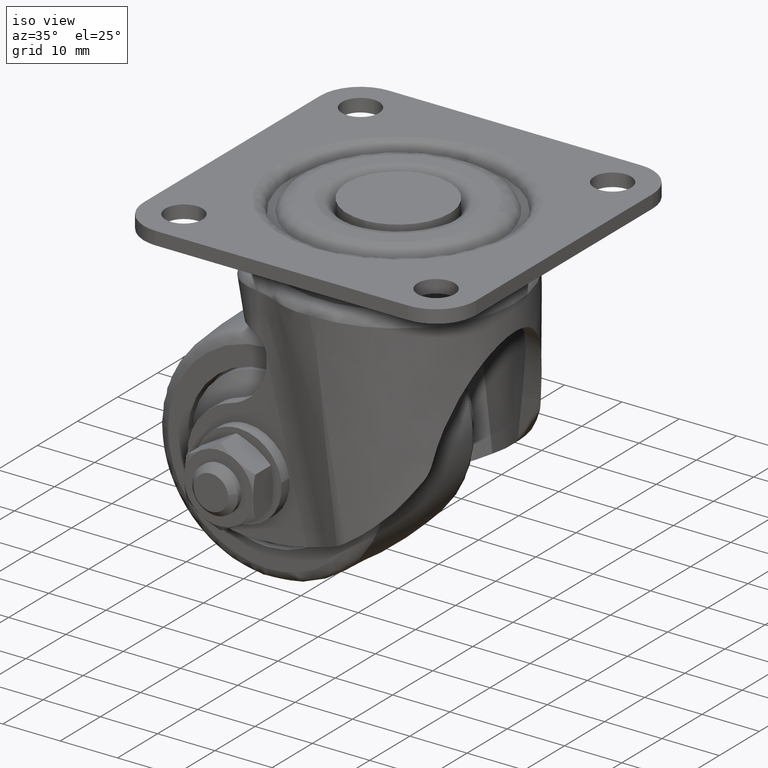
[diagram: clean part render]
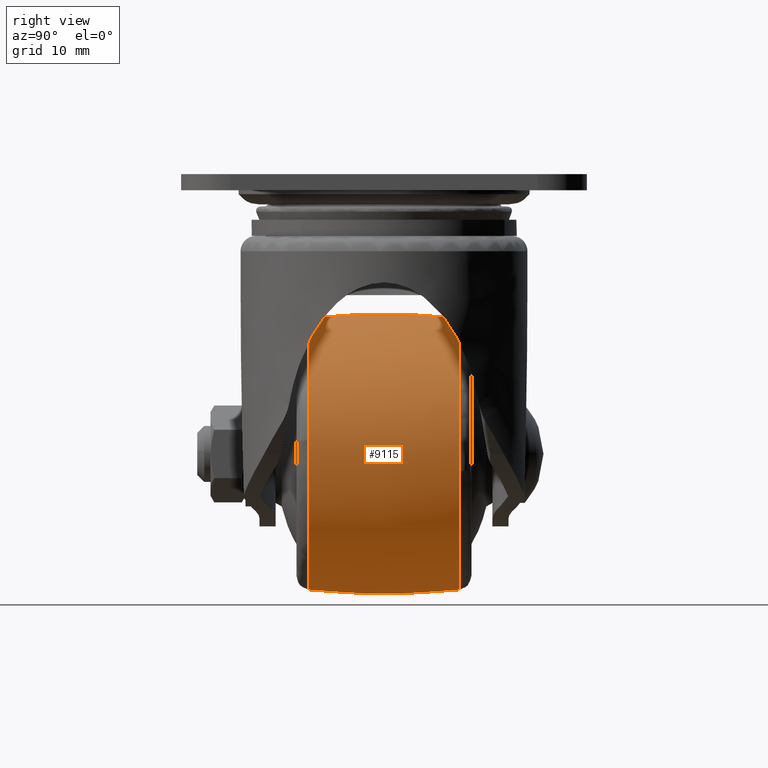
[diagram: tour spotlight — one face highlighted and labeled with its STEP entity id]
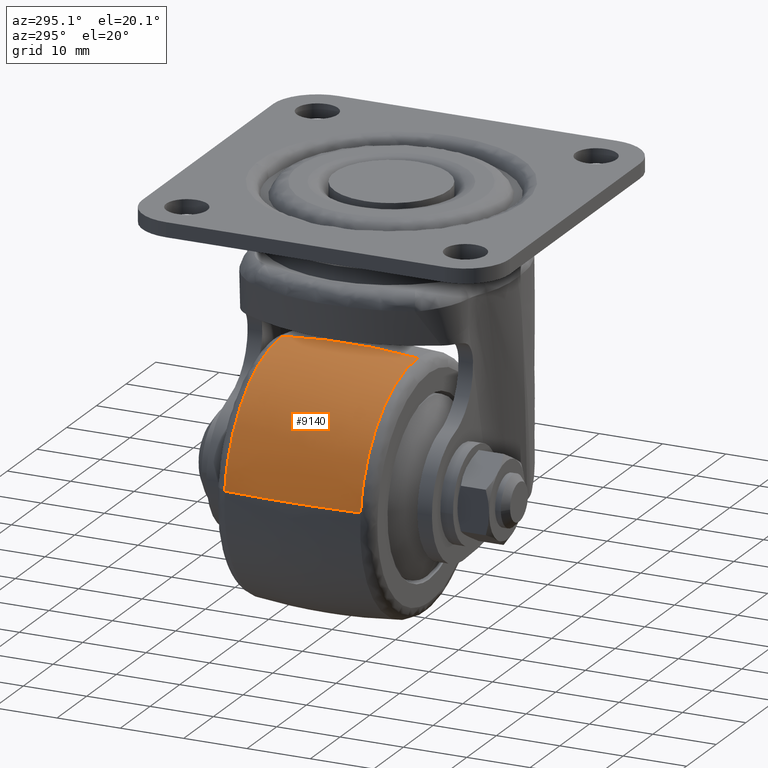
[diagram: tour spotlight — one face highlighted and labeled with its STEP entity id]
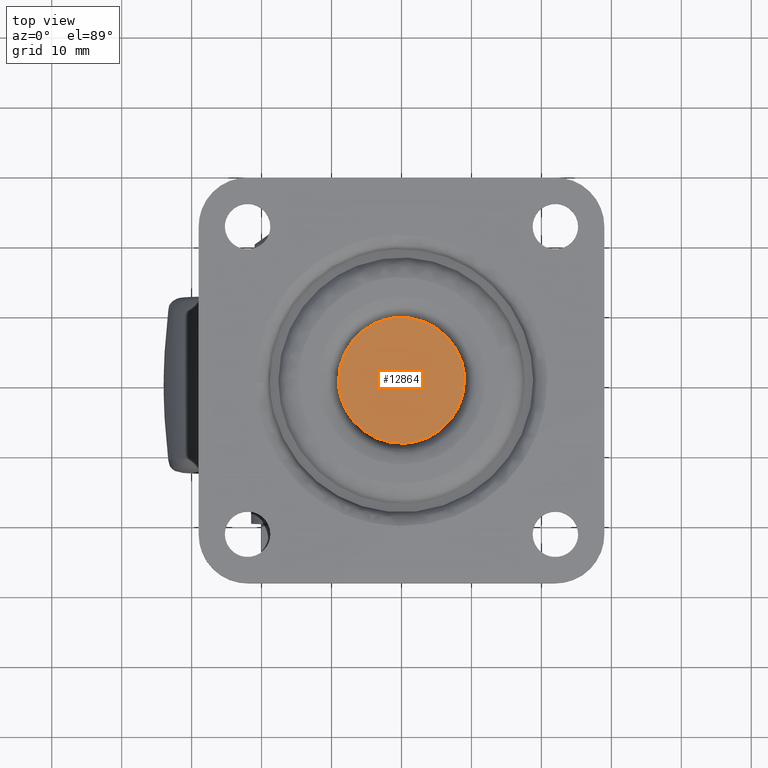
[diagram: tour spotlight — one face highlighted and labeled with its STEP entity id]
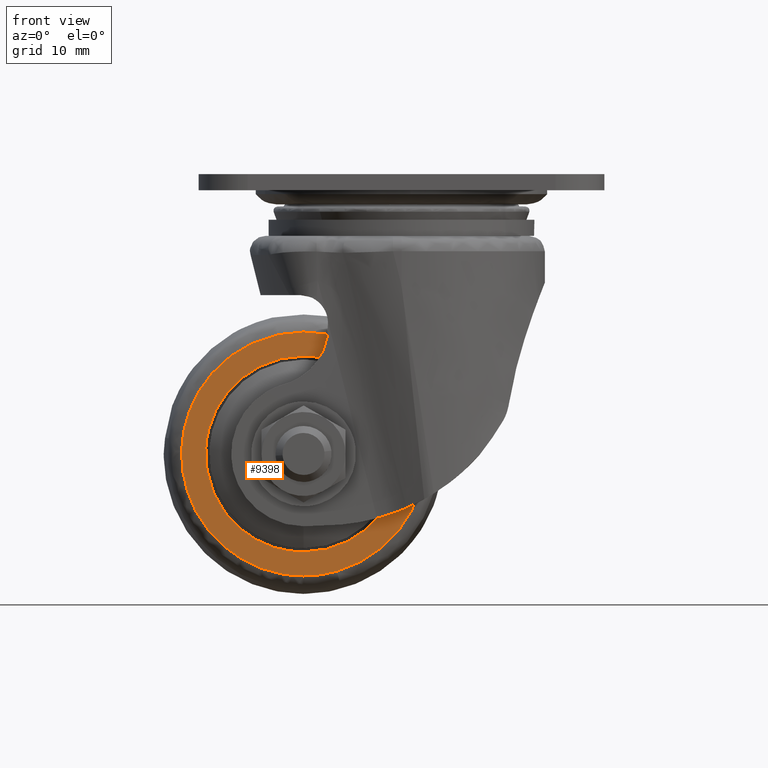
[diagram: tour spotlight — one face highlighted and labeled with its STEP entity id]
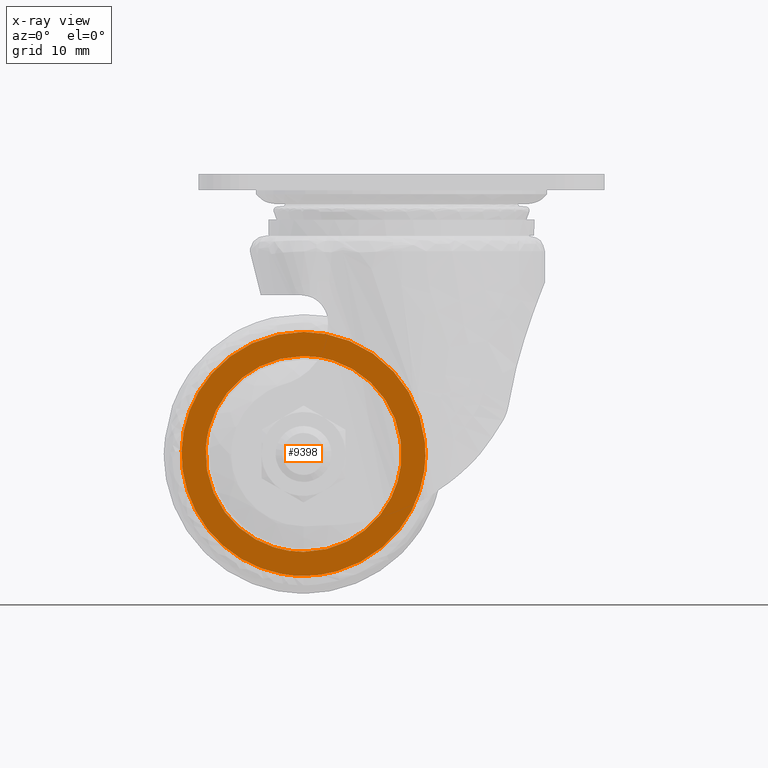
[diagram: x-ray of the same camera — body ghosted, this tour face saturated]
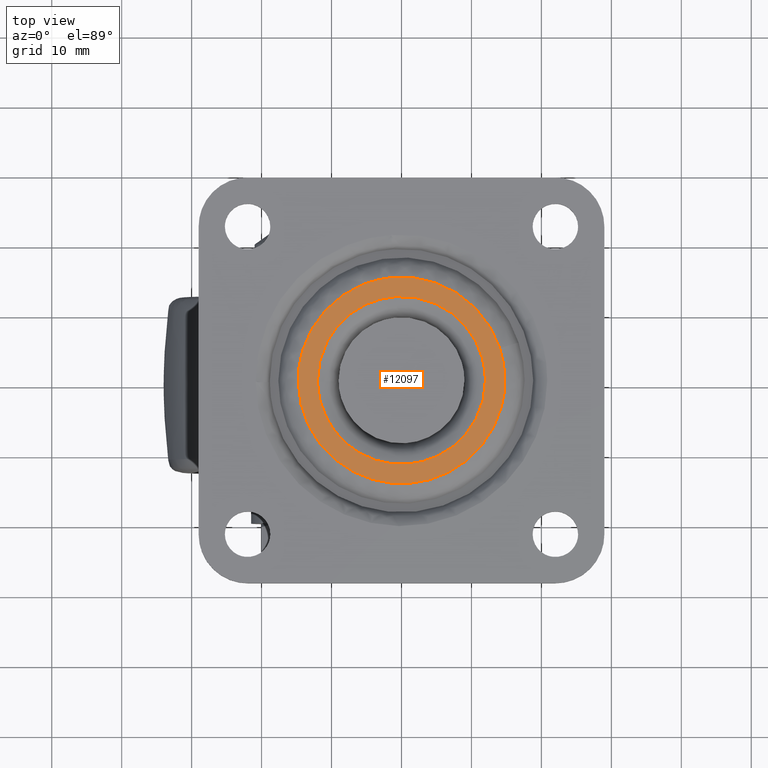
[diagram: tour spotlight — one face highlighted and labeled with its STEP entity id]
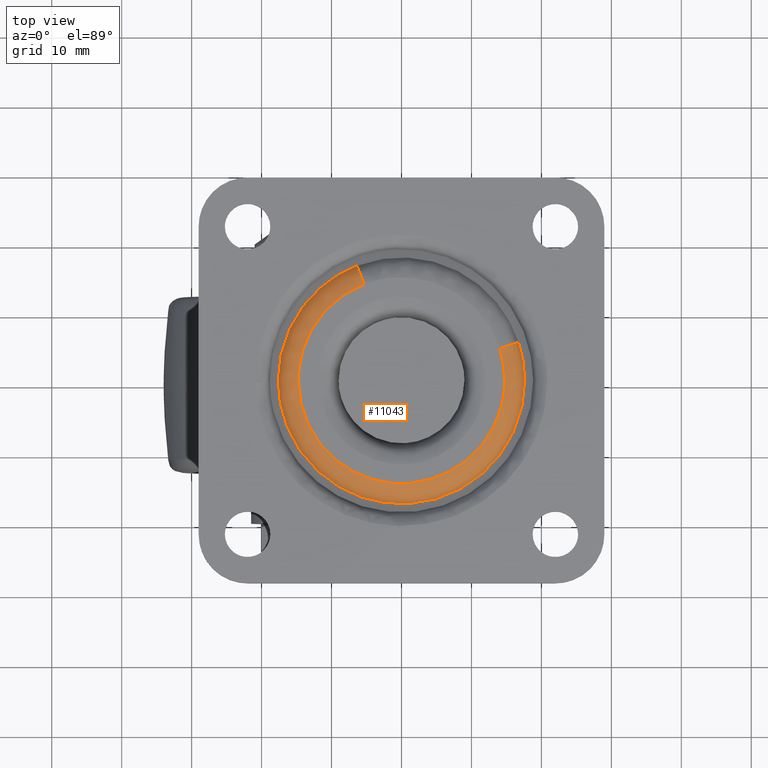
[diagram: tour spotlight — one face highlighted and labeled with its STEP entity id]
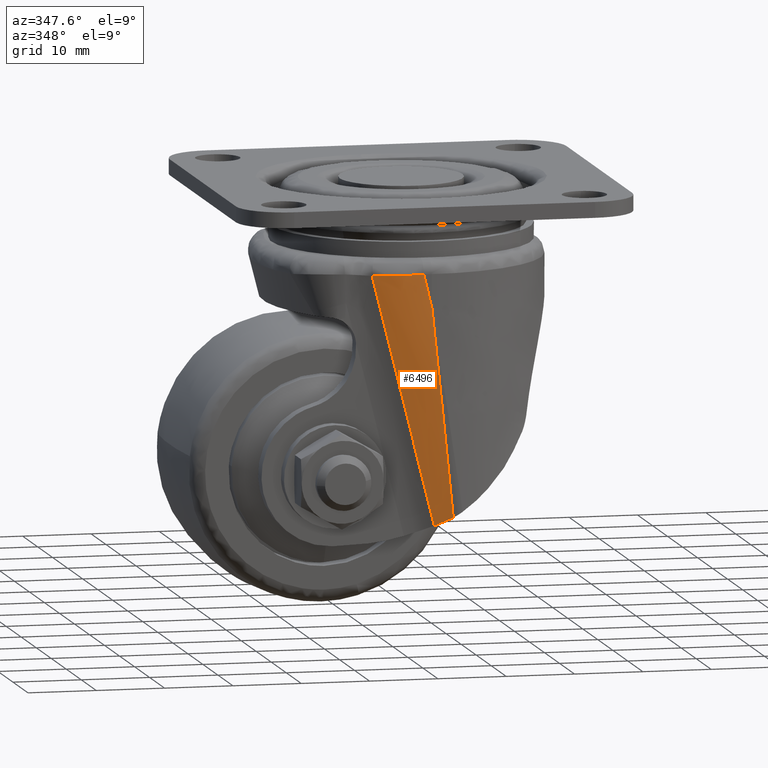
[diagram: tour spotlight — one face highlighted and labeled with its STEP entity id]
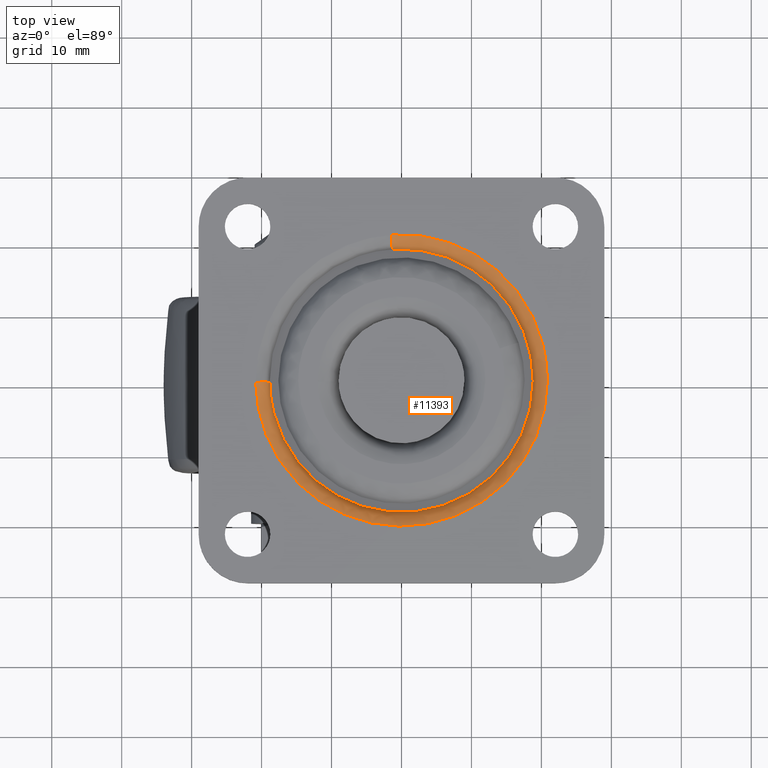
[diagram: tour spotlight — one face highlighted and labeled with its STEP entity id]
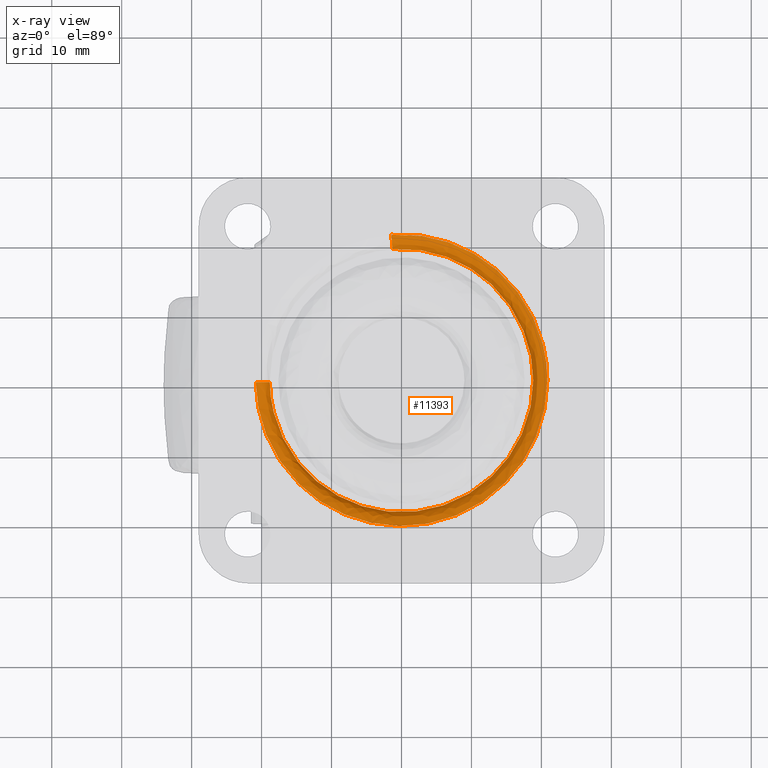
[diagram: x-ray of the same camera — body ghosted, this tour face saturated]
A machine part: a face-by-face anatomy tour. The part has 230 B-rep faces; the first image is the clean iso view, then the 8 largest visible faces are spotlighted one at a time (largest first), each with its STEP entity span.

Face 1 — right view, entity #9115. In plain terms, the highlighted face is a freeform B-spline surface patch.
Definition (entity closure, byte-faithful):
#8665=CARTESIAN_POINT('',(0.0,10.714286299961399,-20.575636441149630));
#8666=VERTEX_POINT('',#8665);
#8680=CARTESIAN_POINT('',(19.271196713018298,10.714285714387870,-42.434518302668202));
#8681=VERTEX_POINT('',#8680);
#8682=CARTESIAN_POINT('',(19.271196713018295,10.714285714387868,-42.434518302668188));
#8683=CARTESIAN_POINT('',(19.424363621964602,10.714285714285703,-41.222077373889711));
#8684=CARTESIAN_POINT('',(19.424363621964599,10.714285714285699,-40.0));
#8685=CARTESIAN_POINT('',(19.424363621964606,10.714285714285701,-20.575636378035405));
#8686=CARTESIAN_POINT('',(0.0,10.714286299961399,-20.575636441149630));
#8694=(BOUNDED_CURVE()B_SPLINE_CURVE(2,(#8682,#8683,#8684,#8685,#8686),.UNSPECIFIED.,.F.,.U.)B_SPLINE_CURVE_WITH_KNOTS((3,2,3),(0.228321256481547,0.250000000000000,0.500000000000000),.UNSPECIFIED.)CURVE()GEOMETRIC_REPRESENTATION_ITEM()RATIONAL_B_SPLINE_CURVE((0.953608357591935,0.974601772124197,1.0,0.707106781186548,1.0))REPRESENTATION_ITEM(''));
#8695=EDGE_CURVE('',#8681,#8666,#8694,.T.);
#8752=CARTESIAN_POINT('',(0.0,10.714285714285699,-59.424363621964602));
#8753=VERTEX_POINT('',#8752);
#8754=CARTESIAN_POINT('',(0.0,10.714285714285699,-59.424363621964602));
#8755=CARTESIAN_POINT('',(17.124880113947309,10.714285714285701,-59.424363621964609));
#8756=CARTESIAN_POINT('',(19.271196713018298,10.714285714387870,-42.434518302668188));
#8764=(BOUNDED_CURVE()B_SPLINE_CURVE(2,(#8754,#8755,#8756),.UNSPECIFIED.,.F.,.U.)B_SPLINE_CURVE_WITH_KNOTS((3,3),(0.0,0.228321256481547),.UNSPECIFIED.)CURVE()GEOMETRIC_REPRESENTATION_ITEM()RATIONAL_B_SPLINE_CURVE((1.0,0.732505009062351,0.953608357591935))REPRESENTATION_ITEM(''));
#8765=EDGE_CURVE('',#8753,#8681,#8764,.T.);
#8767=CARTESIAN_POINT('',(-19.294447095017929,10.714288828713890,-37.757189179322722));
#8768=VERTEX_POINT('',#8767);
#8769=CARTESIAN_POINT('',(-19.294447095017933,10.714288828713890,-37.757189179322722));
#8770=CARTESIAN_POINT('',(-19.424363297184993,10.714288748389205,-38.874831870471347));
#8771=CARTESIAN_POINT('',(-19.424363306840551,10.714288658186630,-40.000000036630418));
#8772=CARTESIAN_POINT('',(-19.424363473529457,10.714287100972530,-59.424363639218889));
#8773=CARTESIAN_POINT('',(0.0,10.714285714285699,-59.424363621964602));
#8781=(BOUNDED_CURVE()B_SPLINE_CURVE(2,(#8769,#8770,#8771,#8772,#8773),.UNSPECIFIED.,.F.,.U.)B_SPLINE_CURVE_WITH_KNOTS((3,2,3),(0.730000072909764,0.750000000000000,1.0),.UNSPECIFIED.)CURVE()GEOMETRIC_REPRESENTATION_ITEM()RATIONAL_B_SPLINE_CURVE((0.956886261694801,0.976568627914026,1.0,0.707106781186548,1.0))REPRESENTATION_ITEM(''));
#8782=EDGE_CURVE('',#8768,#8753,#8781,.T.);
#8833=CARTESIAN_POINT('',(5.292705178539190,-10.714285764541451,-58.689386667564612));
#8834=VERTEX_POINT('',#8833);
#8835=CARTESIAN_POINT('',(19.326293032899141,-10.714283642684229,-38.050561316586453));
#8836=VERTEX_POINT('',#8835);
#8837=CARTESIAN_POINT('',(5.292705178539190,-10.714285764541447,-58.689386667564605));
#8838=CARTESIAN_POINT('',(19.424363760643846,-10.714284440708109,-54.687398649861819));
#8839=CARTESIAN_POINT('',(19.424363911872380,-10.714283729270541,-40.000000115192812));
#8840=CARTESIAN_POINT('',(19.424363921933967,-10.714283681936971,-39.022813877459726));
#8841=CARTESIAN_POINT('',(19.326293032899144,-10.714283642684228,-38.050561316586446));
#8849=(BOUNDED_CURVE()B_SPLINE_CURVE(2,(#8837,#8838,#8839,#8840,#8841),.UNSPECIFIED.,.F.,.U.)B_SPLINE_CURVE_WITH_KNOTS((3,2,3),(0.046426116469131,0.250000000000000,0.267423233135662),.UNSPECIFIED.)CURVE()GEOMETRIC_REPRESENTATION_ITEM()RATIONAL_B_SPLINE_CURVE((0.911418360645880,0.761498359945156,1.0,0.979587412659035,0.962020051463220))REPRESENTATION_ITEM(''));
#8850=EDGE_CURVE('',#8834,#8836,#8849,.T.);
#8935=CARTESIAN_POINT('',(0.0,-10.714285714285660,-59.424363621964602));
#8936=VERTEX_POINT('',#8935);
#8937=CARTESIAN_POINT('',(0.0,-10.714285714285660,-59.424363621964602));
#8938=CARTESIAN_POINT('',(2.697384255821131,-10.714285714285660,-59.424363621964595));
#8939=CARTESIAN_POINT('',(5.292705178539190,-10.714285764541447,-58.689386667564605));
#8947=(BOUNDED_CURVE()B_SPLINE_CURVE(2,(#8937,#8938,#8939),.UNSPECIFIED.,.F.,.U.)B_SPLINE_CURVE_WITH_KNOTS((3,3),(0.0,0.046426116469131),.UNSPECIFIED.)CURVE()GEOMETRIC_REPRESENTATION_ITEM()RATIONAL_B_SPLINE_CURVE((1.0,0.945608421241392,0.911418360645880))REPRESENTATION_ITEM(''));
#8948=EDGE_CURVE('',#8936,#8834,#8947,.T.);
#8997=CARTESIAN_POINT('',(0.0,-10.714288400985341,-20.575636667562829));
#8998=VERTEX_POINT('',#8997);
#8999=CARTESIAN_POINT('',(19.326293032899144,-10.714283642684228,-38.050561316586446));
#9000=CARTESIAN_POINT('',(17.563601132821727,-10.714286626100066,-20.575636651963524));
#9001=CARTESIAN_POINT('',(0.0,-10.714288400985341,-20.575636667562829));
#9009=(BOUNDED_CURVE()B_SPLINE_CURVE(2,(#8999,#9000,#9001),.UNSPECIFIED.,.F.,.U.)B_SPLINE_CURVE_WITH_KNOTS((3,3),(0.267423233135662,0.500000000000000),.UNSPECIFIED.)CURVE()GEOMETRIC_REPRESENTATION_ITEM()RATIONAL_B_SPLINE_CURVE((0.962020051463220,0.727519368527512,1.0))REPRESENTATION_ITEM(''));
#9010=EDGE_CURVE('',#8836,#8998,#9009,.T.);
#9012=CARTESIAN_POINT('',(-19.294446533939709,-10.714293691927089,-37.757188891355263));
#9013=VERTEX_POINT('',#9012);
#9027=CARTESIAN_POINT('',(-19.294446533939716,-10.714293691927086,-37.757188891355263));
#9028=CARTESIAN_POINT('',(-19.424362790040561,-10.714293486174514,-38.874831753421049));
#9029=CARTESIAN_POINT('',(-19.424362814773311,-10.714293255119591,-40.000000093828952));
#9030=CARTESIAN_POINT('',(-19.424363241747489,-10.714289266298879,-59.424363666161526));
#9031=CARTESIAN_POINT('',(0.0,-10.714285714285660,-59.424363621964602));
#9039=(BOUNDED_CURVE()B_SPLINE_CURVE(2,(#9027,#9028,#9029,#9030,#9031),.UNSPECIFIED.,.F.,.U.)B_SPLINE_CURVE_WITH_KNOTS((3,2,3),(0.730000069854633,0.750000000000000,1.0),.UNSPECIFIED.)CURVE()GEOMETRIC_REPRESENTATION_ITEM()RATIONAL_B_SPLINE_CURVE((0.956886255681557,0.976568624334717,1.0,0.707106781186548,1.0))REPRESENTATION_ITEM(''));
#9040=EDGE_CURVE('',#9013,#8936,#9039,.T.);
#9045=CARTESIAN_POINT('',(-19.174913711203846,-11.777539182089125,-37.771075993191246));
#9046=CARTESIAN_POINT('',(-20.562396841686844,-0.000001993783844,-37.609792635928031));
#9047=CARTESIAN_POINT('',(-19.174914174453328,11.777535249833139,-37.771075939342360));
#9048=CARTESIAN_POINT('',(-19.304025954713218,-11.777539182089129,-38.881798530518466));
#9049=CARTESIAN_POINT('',(-20.700851555389619,-0.000001993783845,-38.800886266778775));
#9050=CARTESIAN_POINT('',(-19.304026421081939,11.777535249833148,-38.881798503503695));
#9051=CARTESIAN_POINT('',(-19.304025954713222,-11.777539182089138,-40.0));
#9052=CARTESIAN_POINT('',(-20.700851555389622,-0.000001993783847,-39.999999999999993));
#9053=CARTESIAN_POINT('',(-19.304026421081936,11.777535249833148,-39.999999999999993));
#9054=CARTESIAN_POINT('',(-19.304025954713236,-11.777539182089129,-59.304025954713218));
#9055=CARTESIAN_POINT('',(-20.700851555389637,-0.000001993783845,-60.700851555389626));
#9056=CARTESIAN_POINT('',(-19.304026421081943,11.777535249833143,-59.304026421081936));
#9057=CARTESIAN_POINT('',(0.0,-11.777539182089138,-59.304025954713225));
#9058=CARTESIAN_POINT('',(0.0,-0.000001993783847,-60.700851555389619));
#9059=CARTESIAN_POINT('',(0.0,11.777535249833148,-59.304026421081929));
#9060=CARTESIAN_POINT('',(19.304025954713218,-11.777539182089129,-59.304025954713232));
#9061=CARTESIAN_POINT('',(20.700851555389619,-0.000001993783845,-60.700851555389626));
#9062=CARTESIAN_POINT('',(19.304026421081943,11.777535249833143,-59.304026421081936));
#9063=CARTESIAN_POINT('',(19.304025954713222,-11.777539182089138,-40.0));
#9064=CARTESIAN_POINT('',(20.700851555389622,-0.000001993783847,-39.999999999999993));
#9065=CARTESIAN_POINT('',(19.304026421081936,11.777535249833148,-39.999999999999993));
#9066=CARTESIAN_POINT('',(19.304025954713236,-11.777539182089129,-20.695974045286796));
#9067=CARTESIAN_POINT('',(20.700851555389637,-0.000001993783845,-19.299148444610385));
#9068=CARTESIAN_POINT('',(19.304026421081943,11.777535249833143,-20.695973578918068));
#9069=CARTESIAN_POINT('',(0.0,-11.777539182089138,-20.695974045286782));
#9070=CARTESIAN_POINT('',(0.0,-0.000001993783847,-19.299148444610385));
#9071=CARTESIAN_POINT('',(0.0,11.777535249833148,-20.695973578918061));
#9079=(BOUNDED_SURFACE()B_SPLINE_SURFACE(2,2,((#9045,#9048,#9051,#9054,#9057,#9060,#9063,#9066,#9069),(#9046,#9049,#9052,#9055,#9058,#9061,#9064,#9067,#9070),(#9047,#9050,#9053,#9056,#9059,#9062,#9065,#9068,#9071)),.UNSPECIFIED.,.F.,.F.,.U.)B_SPLINE_SURFACE_WITH_KNOTS((3,3),(3,2,2,2,3),(0.0,23.637329242626830),(0.0,2.650966246153039,35.788051236000662,68.925136225848263,102.062221215695900),.UNSPECIFIED.)GEOMETRIC_REPRESENTATION_ITEM()RATIONAL_B_SPLINE_SURFACE(((0.864204834435419,0.881980871620232,0.903142819808870,0.638618412266793,0.903142819808870,0.638618412266793,0.903142819808870,0.638618412266793,0.903142819808870),(0.858190194100748,0.875842514701272,0.896857181247801,0.634173794616172,0.896857181247801,0.634173794616172,0.896857181247801,0.634173794616172,0.896857181247801),(0.864204832413191,0.881980869556408,0.903142817695529,0.638618410772434,0.903142817695529,0.638618410772434,0.903142817695529,0.638618410772434,0.903142817695529)))REPRESENTATION_ITEM('')SURFACE());
#9080=ORIENTED_EDGE('',*,*,#8782,.T.);
#9081=ORIENTED_EDGE('',*,*,#8765,.T.);
#9082=ORIENTED_EDGE('',*,*,#8695,.T.);
#9083=CARTESIAN_POINT('',(0.0,-10.714288400985343,-20.575636667562829));
#9084=CARTESIAN_POINT('',(0.0,-0.000000766472903,-19.421030654714041));
#9085=CARTESIAN_POINT('',(0.0,10.714286299961401,-20.575636441149637));
#9093=(BOUNDED_CURVE()B_SPLINE_CURVE(2,(#9083,#9084,#9085),.UNSPECIFIED.,.F.,.U.)B_SPLINE_CURVE_WITH_KNOTS((3,3),(0.419410886749644,0.580589101786449),.UNSPECIFIED.)CURVE()GEOMETRIC_REPRESENTATION_ITEM()RATIONAL_B_SPLINE_CURVE((0.902597842069791,0.897402158299755,0.902597841330699))REPRESENTATION_ITEM(''));
#9094=EDGE_CURVE('',#8998,#8666,#9093,.T.);
#9095=ORIENTED_EDGE('',*,*,#9094,.F.);
#9096=ORIENTED_EDGE('',*,*,#9010,.F.);
#9097=ORIENTED_EDGE('',*,*,#8850,.F.);
#9098=ORIENTED_EDGE('',*,*,#8948,.F.);
#9099=ORIENTED_EDGE('',*,*,#9040,.F.);
#9100=CARTESIAN_POINT('',(-19.294446533939709,-10.714293691927091,-37.757188891355248));
#9101=CARTESIAN_POINT('',(-20.441331102992734,-0.000002459844640,-37.623873260782517));
#9102=CARTESIAN_POINT('',(-19.294447095017933,10.714288828713892,-37.757189179322715));
#9110=(BOUNDED_CURVE()B_SPLINE_CURVE(2,(#9100,#9101,#9102),.UNSPECIFIED.,.F.,.U.)B_SPLINE_CURVE_WITH_KNOTS((3,3),(0.419410846722625,0.580589116486210),.UNSPECIFIED.)CURVE()GEOMETRIC_REPRESENTATION_ITEM()RATIONAL_B_SPLINE_CURVE((0.863683347854764,0.858711666023279,0.863683345585054))REPRESENTATION_ITEM(''));
#9111=EDGE_CURVE('',#9013,#8768,#9110,.T.);
#9112=ORIENTED_EDGE('',*,*,#9111,.T.);
#9113=EDGE_LOOP('',(#9080,#9081,#9082,#9095,#9096,#9097,#9098,#9099,#9112));
#9114=FACE_OUTER_BOUND('',#9113,.T.);
#9115=ADVANCED_FACE('',(#9114),#9079,.T.);

Face 2 — auxiliary view, entity #9140. In plain terms, the highlighted face is a freeform B-spline surface patch.
Definition (entity closure, byte-faithful):
#8650=CARTESIAN_POINT('',(-19.271196381712219,10.714288814684449,-37.565481739166877));
#8651=VERTEX_POINT('',#8650);
#8665=CARTESIAN_POINT('',(0.0,10.714286299961399,-20.575636441149630));
#8666=VERTEX_POINT('',#8665);
#8667=CARTESIAN_POINT('',(0.0,10.714286299961399,-20.575636441149630));
#8668=CARTESIAN_POINT('',(-17.124879951523116,10.714287551738504,-20.575636429090022));
#8669=CARTESIAN_POINT('',(-19.271196381712215,10.714288814684448,-37.565481739166877));
#8677=(BOUNDED_CURVE()B_SPLINE_CURVE(2,(#8667,#8668,#8669),.UNSPECIFIED.,.F.,.U.)B_SPLINE_CURVE_WITH_KNOTS((3,3),(0.500000000000000,0.728321256506976),.UNSPECIFIED.)CURVE()GEOMETRIC_REPRESENTATION_ITEM()RATIONAL_B_SPLINE_CURVE((1.0,0.732505009032560,0.953608357641184))REPRESENTATION_ITEM(''));
#8678=EDGE_CURVE('',#8666,#8651,#8677,.T.);
#8767=CARTESIAN_POINT('',(-19.294447095017929,10.714288828713890,-37.757189179322722));
#8768=VERTEX_POINT('',#8767);
#8784=CARTESIAN_POINT('',(-19.271196381712215,10.714288814684441,-37.565481739166884));
#8785=CARTESIAN_POINT('',(-19.283298221384534,10.714288821655851,-37.661277670288449));
#8786=CARTESIAN_POINT('',(-19.294447095017933,10.714288828713890,-37.757189179322722));
#8794=(BOUNDED_CURVE()B_SPLINE_CURVE(2,(#8784,#8785,#8786),.UNSPECIFIED.,.F.,.U.)B_SPLINE_CURVE_WITH_KNOTS((3,3),(0.728321256506975,0.730000072909764),.UNSPECIFIED.)CURVE()GEOMETRIC_REPRESENTATION_ITEM()RATIONAL_B_SPLINE_CURVE((0.953608357641182,0.955234101709144,0.956886261694801))REPRESENTATION_ITEM(''));
#8795=EDGE_CURVE('',#8651,#8768,#8794,.T.);
#8997=CARTESIAN_POINT('',(0.0,-10.714288400985341,-20.575636667562829));
#8998=VERTEX_POINT('',#8997);
#9012=CARTESIAN_POINT('',(-19.294446533939709,-10.714293691927089,-37.757188891355263));
#9013=VERTEX_POINT('',#9012);
#9014=CARTESIAN_POINT('',(0.0,-10.714288400985341,-20.575636667562829));
#9015=CARTESIAN_POINT('',(-17.297241363426462,-10.714291046456218,-20.575636572431140));
#9016=CARTESIAN_POINT('',(-19.294446533939716,-10.714293691927086,-37.757188891355263));
#9024=(BOUNDED_CURVE()B_SPLINE_CURVE(2,(#9014,#9015,#9016),.UNSPECIFIED.,.F.,.U.)B_SPLINE_CURVE_WITH_KNOTS((3,3),(0.500000000000000,0.730000069854633),.UNSPECIFIED.)CURVE()GEOMETRIC_REPRESENTATION_ITEM()RATIONAL_B_SPLINE_CURVE((1.0,0.730538156851831,0.956886255681557))REPRESENTATION_ITEM(''));
#9025=EDGE_CURVE('',#8998,#9013,#9024,.T.);
#9083=CARTESIAN_POINT('',(0.0,-10.714288400985343,-20.575636667562829));
#9084=CARTESIAN_POINT('',(0.0,-0.000000766472903,-19.421030654714041));
#9085=CARTESIAN_POINT('',(0.0,10.714286299961401,-20.575636441149637));
#9093=(BOUNDED_CURVE()B_SPLINE_CURVE(2,(#9083,#9084,#9085),.UNSPECIFIED.,.F.,.U.)B_SPLINE_CURVE_WITH_KNOTS((3,3),(0.419410886749644,0.580589101786449),.UNSPECIFIED.)CURVE()GEOMETRIC_REPRESENTATION_ITEM()RATIONAL_B_SPLINE_CURVE((0.902597842069791,0.897402158299755,0.902597841330699))REPRESENTATION_ITEM(''));
#9094=EDGE_CURVE('',#8998,#8666,#9093,.T.);
#9100=CARTESIAN_POINT('',(-19.294446533939709,-10.714293691927091,-37.757188891355248));
#9101=CARTESIAN_POINT('',(-20.441331102992734,-0.000002459844640,-37.623873260782517));
#9102=CARTESIAN_POINT('',(-19.294447095017933,10.714288828713892,-37.757189179322715));
#9110=(BOUNDED_CURVE()B_SPLINE_CURVE(2,(#9100,#9101,#9102),.UNSPECIFIED.,.F.,.U.)B_SPLINE_CURVE_WITH_KNOTS((3,3),(0.419410846722625,0.580589116486210),.UNSPECIFIED.)CURVE()GEOMETRIC_REPRESENTATION_ITEM()RATIONAL_B_SPLINE_CURVE((0.863683347854764,0.858711666023279,0.863683345585054))REPRESENTATION_ITEM(''));
#9111=EDGE_CURVE('',#9013,#8768,#9110,.T.);
#9116=CARTESIAN_POINT('',(0.0,-11.777539182089138,-20.695974045286782));
#9117=CARTESIAN_POINT('',(0.0,-0.000001993783847,-19.299148444610385));
#9118=CARTESIAN_POINT('',(0.0,11.777535249833148,-20.695973578918061));
#9119=CARTESIAN_POINT('',(-17.190074905220044,-11.777539182089136,-20.695974045286771));
#9120=CARTESIAN_POINT('',(-18.433936510124987,-0.000001993783849,-19.299148444610367));
#9121=CARTESIAN_POINT('',(-17.190075320517511,11.777535249833141,-20.695973578918061));
#9122=CARTESIAN_POINT('',(-19.174913656225939,-11.777539182089127,-37.771075520229218));
#9123=CARTESIAN_POINT('',(-20.562396782730779,-0.000001993783844,-37.609792128742782));
#9124=CARTESIAN_POINT('',(-19.174914119475424,11.777535249833143,-37.771075466380303));
#9132=(BOUNDED_SURFACE()B_SPLINE_SURFACE(2,2,((#9116,#9119,#9122),(#9117,#9120,#9123),(#9118,#9121,#9124)),.UNSPECIFIED.,.F.,.F.,.U.)B_SPLINE_SURFACE_WITH_KNOTS((3,3),(3,3),(0.0,23.637329242626830),(0.0,30.452679126871111),.UNSPECIFIED.)GEOMETRIC_REPRESENTATION_ITEM()RATIONAL_B_SPLINE_SURFACE(((0.903142819808870,0.659780364870159,0.864204827018677),(0.896857181247801,0.655188465546703,0.858190186735625),(0.903142817695529,0.659780363326282,0.864204824996449)))REPRESENTATION_ITEM('')SURFACE());
#9133=ORIENTED_EDGE('',*,*,#8678,.T.);
#9134=ORIENTED_EDGE('',*,*,#8795,.T.);
#9135=ORIENTED_EDGE('',*,*,#9111,.F.);
#9136=ORIENTED_EDGE('',*,*,#9025,.F.);
#9137=ORIENTED_EDGE('',*,*,#9094,.T.);
#9138=EDGE_LOOP('',(#9133,#9134,#9135,#9136,#9137));
#9139=FACE_OUTER_BOUND('',#9138,.T.);
#9140=ADVANCED_FACE('',(#9139),#9132,.T.);

Face 3 — top view, entity #12864. In plain terms, the highlighted face is a freeform B-spline surface patch.
Definition (entity closure, byte-faithful):
#12202=CARTESIAN_POINT('',(-1.062302664353479,8.937086384794396,-2.839428E-016));
#12203=VERTEX_POINT('',#12202);
#12209=CARTESIAN_POINT('',(9.0,0.0,0.0));
#12210=VERTEX_POINT('',#12209);
#12211=CARTESIAN_POINT('',(-1.062302664353479,8.937086384794396,-2.839428E-016));
#12212=CARTESIAN_POINT('',(-0.533014324293326,8.999999999999998,0.0));
#12213=CARTESIAN_POINT('',(0.0,9.0,0.0));
#12214=CARTESIAN_POINT('',(9.0,9.0,0.0));
#12215=CARTESIAN_POINT('',(9.0,0.0,0.0));
#12223=(BOUNDED_CURVE()B_SPLINE_CURVE(2,(#12211,#12212,#12213,#12214,#12215),.UNSPECIFIED.,.F.,.U.)B_SPLINE_CURVE_WITH_KNOTS((3,2,3),(0.229562576530761,0.250000000000000,0.500000000000000),.UNSPECIFIED.)CURVE()GEOMETRIC_REPRESENTATION_ITEM()RATIONAL_B_SPLINE_CURVE((0.956026956101829,0.976056069023364,1.0,0.707106781186547,1.0))REPRESENTATION_ITEM(''));
#12224=EDGE_CURVE('',#12203,#12210,#12223,.T.);
#12226=CARTESIAN_POINT('',(0.549422237828449,-8.983214079847205,-2.775558E-016));
#12227=VERTEX_POINT('',#12226);
#12228=CARTESIAN_POINT('',(9.0,0.0,0.0));
#12229=CARTESIAN_POINT('',(9.000000000000002,-8.466368404829368,0.0));
#12230=CARTESIAN_POINT('',(0.549422237828449,-8.983214079847205,-2.775558E-016));
#12238=(BOUNDED_CURVE()B_SPLINE_CURVE(2,(#12228,#12229,#12230),.UNSPECIFIED.,.F.,.U.)B_SPLINE_CURVE_WITH_KNOTS((3,3),(0.500000000000000,0.739333243019782),.UNSPECIFIED.)CURVE()GEOMETRIC_REPRESENTATION_ITEM()RATIONAL_B_SPLINE_CURVE((1.0,0.719603664331495,0.976072643434243))REPRESENTATION_ITEM(''));
#12239=EDGE_CURVE('',#12210,#12227,#12238,.T.);
#12313=CARTESIAN_POINT('',(-9.0,0.0,0.0));
#12314=VERTEX_POINT('',#12313);
#12315=CARTESIAN_POINT('',(0.549422237828449,-8.983214079847205,-2.775558E-016));
#12316=CARTESIAN_POINT('',(0.274967540201876,-9.0,0.0));
#12317=CARTESIAN_POINT('',(0.0,-9.0,0.0));
#12318=CARTESIAN_POINT('',(-9.0,-9.0,0.0));
#12319=CARTESIAN_POINT('',(-9.0,0.0,0.0));
#12327=(BOUNDED_CURVE()B_SPLINE_CURVE(2,(#12315,#12316,#12317,#12318,#12319),.UNSPECIFIED.,.F.,.U.)B_SPLINE_CURVE_WITH_KNOTS((3,2,3),(0.739333243019782,0.750000000000000,1.0),.UNSPECIFIED.)CURVE()GEOMETRIC_REPRESENTATION_ITEM()RATIONAL_B_SPLINE_CURVE((0.976072643434243,0.987503116855052,1.0,0.707106781186547,1.0))REPRESENTATION_ITEM(''));
#12328=EDGE_CURVE('',#12227,#12314,#12327,.T.);
#12330=CARTESIAN_POINT('',(-9.0,0.0,0.0));
#12331=CARTESIAN_POINT('',(-9.0,7.993575640306083,0.0));
#12332=CARTESIAN_POINT('',(-1.062302664353479,8.937086384794396,-2.839428E-016));
#12340=(BOUNDED_CURVE()B_SPLINE_CURVE(2,(#12330,#12331,#12332),.UNSPECIFIED.,.F.,.U.)B_SPLINE_CURVE_WITH_KNOTS((3,3),(0.0,0.229562576530761),.UNSPECIFIED.)CURVE()GEOMETRIC_REPRESENTATION_ITEM()RATIONAL_B_SPLINE_CURVE((1.0,0.731050712163184,0.956026956101829))REPRESENTATION_ITEM(''));
#12341=EDGE_CURVE('',#12314,#12203,#12340,.T.);
#12853=CARTESIAN_POINT('',(9.899099965112507,-9.898881420025438,0.0));
#12854=CARTESIAN_POINT('',(-9.899100447910129,-9.898881420025438,0.0));
#12855=CARTESIAN_POINT('',(9.899099965112507,9.898936298021884,0.0));
#12856=CARTESIAN_POINT('',(-9.899100447910129,9.898936298021884,0.0));
#12857=B_SPLINE_SURFACE_WITH_KNOTS('',1,1,((#12853,#12855),(#12854,#12856)),.UNSPECIFIED.,.F.,.F.,.U.,(2,2),(2,2),(0.0,19.798200413022631),(0.0,19.797817718047320),.UNSPECIFIED.);
#12858=ORIENTED_EDGE('',*,*,#12328,.F.);
#12859=ORIENTED_EDGE('',*,*,#12239,.F.);
#12860=ORIENTED_EDGE('',*,*,#12224,.F.);
#12861=ORIENTED_EDGE('',*,*,#12341,.F.);
#12862=EDGE_LOOP('',(#12858,#12859,#12860,#12861));
#12863=FACE_OUTER_BOUND('',#12862,.T.);
#12864=ADVANCED_FACE('',(#12863),#12857,.F.);

Face 4 — front view, entity #9398. An x-ray twin of the same camera follows (body ghosted, this face saturated) — the face is partly hidden behind the body. In plain terms, the highlighted face is a freeform B-spline surface patch.
Definition (entity closure, byte-faithful):
#7636=CARTESIAN_POINT('',(13.902134686237041,-12.500000000000311,-41.652468204111742));
#7637=VERTEX_POINT('',#7636);
#7638=CARTESIAN_POINT('',(0.0,-12.500000000000000,-26.0));
#7639=VERTEX_POINT('',#7638);
#7640=CARTESIAN_POINT('',(13.902134686237048,-12.500000000000314,-41.652468204111742));
#7641=CARTESIAN_POINT('',(14.0,-12.499999999999998,-40.829132076012066));
#7642=CARTESIAN_POINT('',(14.0,-12.500000000000000,-40.0));
#7643=CARTESIAN_POINT('',(13.999999999999998,-12.499999999999998,-26.000000000000007));
#7644=CARTESIAN_POINT('',(0.0,-12.500000000000000,-26.0));
#7652=(BOUNDED_CURVE()B_SPLINE_CURVE(2,(#7640,#7641,#7642,#7643,#7644),.UNSPECIFIED.,.F.,.U.)B_SPLINE_CURVE_WITH_KNOTS((3,2,3),(0.229562608224401,0.250000000000000,0.500000000000000),.UNSPECIFIED.)CURVE()GEOMETRIC_REPRESENTATION_ITEM()RATIONAL_B_SPLINE_CURVE((0.956027018222732,0.976056106154773,1.0,0.707106781186547,1.0))REPRESENTATION_ITEM(''));
#7653=EDGE_CURVE('',#7637,#7639,#7652,.T.);
#7655=CARTESIAN_POINT('',(-13.973888173767090,-12.500000000000430,-39.145336729005997));
#7656=VERTEX_POINT('',#7655);
#7657=CARTESIAN_POINT('',(0.0,-12.500000000000000,-26.0));
#7658=CARTESIAN_POINT('',(-13.169900311026950,-12.500000000000000,-26.000000000000004));
#7659=CARTESIAN_POINT('',(-13.973888173767088,-12.500000000000426,-39.145336729006004));
#7667=(BOUNDED_CURVE()B_SPLINE_CURVE(2,(#7657,#7658,#7659),.UNSPECIFIED.,.F.,.U.)B_SPLINE_CURVE_WITH_KNOTS((3,3),(0.500000000000000,0.739333163295008),.UNSPECIFIED.)CURVE()GEOMETRIC_REPRESENTATION_ITEM()RATIONAL_B_SPLINE_CURVE((1.0,0.719603757734878,0.976072472568516))REPRESENTATION_ITEM(''));
#7668=EDGE_CURVE('',#7639,#7656,#7667,.T.);
#7735=CARTESIAN_POINT('',(0.0,-12.500000000000000,-54.0));
#7736=VERTEX_POINT('',#7735);
#7737=CARTESIAN_POINT('',(0.0,-12.500000000000000,-54.0));
#7738=CARTESIAN_POINT('',(12.434453344313242,-12.499999999999998,-54.0));
#7739=CARTESIAN_POINT('',(13.902134686237048,-12.500000000000314,-41.652468204111742));
#7747=(BOUNDED_CURVE()B_SPLINE_CURVE(2,(#7737,#7738,#7739),.UNSPECIFIED.,.F.,.U.)B_SPLINE_CURVE_WITH_KNOTS((3,3),(0.0,0.229562608224401),.UNSPECIFIED.)CURVE()GEOMETRIC_REPRESENTATION_ITEM()RATIONAL_B_SPLINE_CURVE((1.0,0.731050675031774,0.956027018222732))REPRESENTATION_ITEM(''));
#7748=EDGE_CURVE('',#7736,#7637,#7747,.T.);
#7782=CARTESIAN_POINT('',(-13.973888173767088,-12.500000000000426,-39.145336729006004));
#7783=CARTESIAN_POINT('',(-13.999999999999996,-12.500000000000000,-39.572269477893293));
#7784=CARTESIAN_POINT('',(-14.0,-12.500000000000000,-40.0));
#7785=CARTESIAN_POINT('',(-13.999999999999998,-12.499999999999998,-54.0));
#7786=CARTESIAN_POINT('',(0.0,-12.500000000000000,-54.0));
#7794=(BOUNDED_CURVE()B_SPLINE_CURVE(2,(#7782,#7783,#7784,#7785,#7786),.UNSPECIFIED.,.F.,.U.)B_SPLINE_CURVE_WITH_KNOTS((3,2,3),(0.739333163295008,0.750000000000000,1.0),.UNSPECIFIED.)CURVE()GEOMETRIC_REPRESENTATION_ITEM()RATIONAL_B_SPLINE_CURVE((0.976072472568516,0.987503023451670,1.0,0.707106781186547,1.0))REPRESENTATION_ITEM(''));
#7795=EDGE_CURVE('',#7656,#7736,#7794,.T.);
#8852=CARTESIAN_POINT('',(17.347842908609469,-12.500000000000000,-38.250105549152813));
#8853=VERTEX_POINT('',#8852);
#8867=CARTESIAN_POINT('',(4.750886817285662,-12.500000000000000,-56.776139562716438));
#8868=VERTEX_POINT('',#8867);
#8869=CARTESIAN_POINT('',(4.750886817285663,-12.500000000000002,-56.776139562716438));
#8870=CARTESIAN_POINT('',(17.435876349525305,-12.499999999999998,-53.183838165005113));
#8871=CARTESIAN_POINT('',(17.435876349525302,-12.500000000000000,-40.0));
#8872=CARTESIAN_POINT('',(17.435876349525305,-12.500000000000000,-39.122838387568230));
#8873=CARTESIAN_POINT('',(17.347842908609476,-12.500000000000005,-38.250105549152806));
#8881=(BOUNDED_CURVE()B_SPLINE_CURVE(2,(#8869,#8870,#8871,#8872,#8873),.UNSPECIFIED.,.F.,.U.)B_SPLINE_CURVE_WITH_KNOTS((3,2,3),(0.046426116459227,0.250000000000000,0.267423441086091),.UNSPECIFIED.)CURVE()GEOMETRIC_REPRESENTATION_ITEM()RATIONAL_B_SPLINE_CURVE((0.911418360660468,0.761498359933552,1.0,0.979587169029953,0.962019632122361))REPRESENTATION_ITEM(''));
#8882=EDGE_CURVE('',#8868,#8853,#8881,.T.);
#8951=CARTESIAN_POINT('',(0.0,-12.500000000000000,-57.435876349525302));
#8952=VERTEX_POINT('',#8951);
#8953=CARTESIAN_POINT('',(0.0,-12.500000000000000,-57.435876349525302));
#8954=CARTESIAN_POINT('',(2.421250922622817,-12.499999999999996,-57.435876349525309));
#8955=CARTESIAN_POINT('',(4.750886817285662,-12.500000000000002,-56.776139562716438));
#8963=(BOUNDED_CURVE()B_SPLINE_CURVE(2,(#8953,#8954,#8955),.UNSPECIFIED.,.F.,.U.)B_SPLINE_CURVE_WITH_KNOTS((3,3),(0.0,0.046426116459227),.UNSPECIFIED.)CURVE()GEOMETRIC_REPRESENTATION_ITEM()RATIONAL_B_SPLINE_CURVE((1.0,0.945608421252995,0.911418360660468))REPRESENTATION_ITEM(''));
#8964=EDGE_CURVE('',#8952,#8868,#8963,.T.);
#8966=CARTESIAN_POINT('',(0.0,-12.500000000000000,-22.564123650474698));
#8967=VERTEX_POINT('',#8966);
#8968=CARTESIAN_POINT('',(0.0,-12.500000000000000,-22.564123650474698));
#8969=CARTESIAN_POINT('',(-17.435876349525309,-12.499999999999998,-22.564123650474709));
#8970=CARTESIAN_POINT('',(-17.435876349525302,-12.500000000000000,-40.0));
#8971=CARTESIAN_POINT('',(-17.435876349525309,-12.499999999999998,-57.435876349525294));
#8972=CARTESIAN_POINT('',(0.0,-12.500000000000000,-57.435876349525302));
#8980=(BOUNDED_CURVE()B_SPLINE_CURVE(2,(#8968,#8969,#8970,#8971,#8972),.UNSPECIFIED.,.F.,.U.)B_SPLINE_CURVE_WITH_KNOTS((3,2,3),(0.500000000000000,0.750000000000000,1.0),.UNSPECIFIED.)CURVE()GEOMETRIC_REPRESENTATION_ITEM()RATIONAL_B_SPLINE_CURVE((1.0,0.707106781186547,1.0,0.707106781186547,1.0))REPRESENTATION_ITEM(''));
#8981=EDGE_CURVE('',#8967,#8952,#8980,.T.);
#8983=CARTESIAN_POINT('',(17.347842908609476,-12.500000000000005,-38.250105549152806));
#8984=CARTESIAN_POINT('',(15.765582054861339,-12.500000000000000,-22.564123650474702));
#8985=CARTESIAN_POINT('',(0.0,-12.500000000000000,-22.564123650474698));
#8993=(BOUNDED_CURVE()B_SPLINE_CURVE(2,(#8983,#8984,#8985),.UNSPECIFIED.,.F.,.U.)B_SPLINE_CURVE_WITH_KNOTS((3,3),(0.267423441086091,0.500000000000000),.UNSPECIFIED.)CURVE()GEOMETRIC_REPRESENTATION_ITEM()RATIONAL_B_SPLINE_CURVE((0.962019632122361,0.727519612156595,1.0))REPRESENTATION_ITEM(''));
#8994=EDGE_CURVE('',#8853,#8967,#8993,.T.);
#9381=CARTESIAN_POINT('',(-19.177696411026389,-12.500000000000000,-59.177719019850400));
#9382=CARTESIAN_POINT('',(-19.177696411026389,-12.500000000000000,-20.822278797705248));
#9383=CARTESIAN_POINT('',(19.177204774953090,-12.500000000000000,-59.177719019850400));
#9384=CARTESIAN_POINT('',(19.177204774953090,-12.500000000000000,-20.822278797705248));
#9385=B_SPLINE_SURFACE_WITH_KNOTS('',1,1,((#9381,#9383),(#9382,#9384)),.UNSPECIFIED.,.F.,.F.,.U.,(2,2),(2,2),(0.0,38.355440222145148),(0.0,38.354901185979472),.UNSPECIFIED.);
#9386=ORIENTED_EDGE('',*,*,#8964,.T.);
#9387=ORIENTED_EDGE('',*,*,#8882,.T.);
#9388=ORIENTED_EDGE('',*,*,#8994,.T.);
#9389=ORIENTED_EDGE('',*,*,#8981,.T.);
#9390=EDGE_LOOP('',(#9386,#9387,#9388,#9389));
#9391=FACE_OUTER_BOUND('',#9390,.T.);
#9392=ORIENTED_EDGE('',*,*,#7668,.F.);
#9393=ORIENTED_EDGE('',*,*,#7653,.F.);
#9394=ORIENTED_EDGE('',*,*,#7748,.F.);
#9395=ORIENTED_EDGE('',*,*,#7795,.F.);
#9396=EDGE_LOOP('',(#9392,#9393,#9394,#9395));
#9397=FACE_BOUND('',#9396,.T.);
#9398=ADVANCED_FACE('',(#9391,#9397),#9385,.F.);

Face 5 — top view, entity #12097. In plain terms, the highlighted face is a freeform B-spline surface patch.
Definition (entity closure, byte-faithful):
#10966=CARTESIAN_POINT('',(14.045247693274000,4.563577614145991,-4.301715E-016));
#10967=VERTEX_POINT('',#10966);
#10981=CARTESIAN_POINT('',(14.768047378397579,0.0,0.0));
#10982=VERTEX_POINT('',#10981);
#10983=CARTESIAN_POINT('',(14.768047378397579,0.0,0.0));
#10984=CARTESIAN_POINT('',(14.768047378397585,2.339028918841869,0.0));
#10985=CARTESIAN_POINT('',(14.045247693274003,4.563577614145991,-4.301715E-016));
#10993=(BOUNDED_CURVE()B_SPLINE_CURVE(2,(#10983,#10984,#10985),.UNSPECIFIED.,.F.,.U.)B_SPLINE_CURVE_WITH_KNOTS((3,3),(0.500000000000000,0.552549825476587),.UNSPECIFIED.)CURVE()GEOMETRIC_REPRESENTATION_ITEM()RATIONAL_B_SPLINE_CURVE((1.0,0.938434049872310,0.902750339220702))REPRESENTATION_ITEM(''));
#10994=EDGE_CURVE('',#10982,#10967,#10993,.T.);
#10996=CARTESIAN_POINT('',(-14.768047378397579,0.0,0.0));
#10997=VERTEX_POINT('',#10996);
#10998=CARTESIAN_POINT('',(-14.768047378397579,0.0,0.0));
#10999=CARTESIAN_POINT('',(-14.768047378397586,-14.768047378397586,0.0));
#11000=CARTESIAN_POINT('',(0.0,-14.768047378397579,0.0));
#11001=CARTESIAN_POINT('',(14.768047378397586,-14.768047378397586,0.0));
#11002=CARTESIAN_POINT('',(14.768047378397579,0.0,0.0));
#11010=(BOUNDED_CURVE()B_SPLINE_CURVE(2,(#10998,#10999,#11000,#11001,#11002),.UNSPECIFIED.,.F.,.U.)B_SPLINE_CURVE_WITH_KNOTS((3,2,3),(0.0,0.250000000000000,0.500000000000000),.UNSPECIFIED.)CURVE()GEOMETRIC_REPRESENTATION_ITEM()RATIONAL_B_SPLINE_CURVE((1.0,0.707106781186548,1.0,0.707106781186548,1.0))REPRESENTATION_ITEM(''));
#11011=EDGE_CURVE('',#10997,#10982,#11010,.T.);
#11013=CARTESIAN_POINT('',(-5.359387822915718,13.761256685550400,-4.400706E-016));
#11014=VERTEX_POINT('',#11013);
#11015=CARTESIAN_POINT('',(-5.359387822915718,13.761256685550398,-4.400706E-016));
#11016=CARTESIAN_POINT('',(-14.768047378397577,10.097008817749369,0.0));
#11017=CARTESIAN_POINT('',(-14.768047378397579,0.0,0.0));
#11025=(BOUNDED_CURVE()B_SPLINE_CURVE(2,(#11015,#11016,#11017),.UNSPECIFIED.,.F.,.U.)B_SPLINE_CURVE_WITH_KNOTS((3,3),(0.811622011890279,1.0),.UNSPECIFIED.)CURVE()GEOMETRIC_REPRESENTATION_ITEM()RATIONAL_B_SPLINE_CURVE((0.891200894977683,0.779301458835766,1.0))REPRESENTATION_ITEM(''));
#11026=EDGE_CURVE('',#11014,#10997,#11025,.T.);
#11083=CARTESIAN_POINT('',(14.045247693274000,4.563577614145991,-4.301715E-016));
#11084=CARTESIAN_POINT('',(10.729614475812879,14.768047378397586,0.0));
#11085=CARTESIAN_POINT('',(0.0,14.768047378397579,0.0));
#11086=CARTESIAN_POINT('',(-2.774259516077997,14.768047378397577,0.0));
#11087=CARTESIAN_POINT('',(-5.359387822915718,13.761256685550398,-4.400706E-016));
#11095=(BOUNDED_CURVE()B_SPLINE_CURVE(2,(#11083,#11084,#11085,#11086,#11087),.UNSPECIFIED.,.F.,.U.)B_SPLINE_CURVE_WITH_KNOTS((3,2,3),(0.552549825476587,0.750000000000000,0.811622011890279),.UNSPECIFIED.)CURVE()GEOMETRIC_REPRESENTATION_ITEM()RATIONAL_B_SPLINE_CURVE((0.902750339220701,0.768672731314239,1.0,0.927805322350782,0.891200894977683))REPRESENTATION_ITEM(''));
#11096=EDGE_CURVE('',#10967,#11014,#11095,.T.);
#11137=CARTESIAN_POINT('',(-0.836799019088586,11.970788085433639,-5.143064E-016));
#11138=VERTEX_POINT('',#11137);
#11139=CARTESIAN_POINT('',(12.0,0.0,0.0));
#11140=VERTEX_POINT('',#11139);
#11141=CARTESIAN_POINT('',(-0.836799019088586,11.970788085433645,-5.143064E-016));
#11142=CARTESIAN_POINT('',(-0.418909390725087,11.999999999999996,0.0));
#11143=CARTESIAN_POINT('',(0.0,12.0,0.0));
#11144=CARTESIAN_POINT('',(12.0,12.0,0.0));
#11145=CARTESIAN_POINT('',(12.0,0.0,0.0));
#11153=(BOUNDED_CURVE()B_SPLINE_CURVE(2,(#11141,#11142,#11143,#11144,#11145),.UNSPECIFIED.,.F.,.U.)B_SPLINE_CURVE_WITH_KNOTS((3,2,3),(0.237833686528591,0.250000000000000,0.500000000000000),.UNSPECIFIED.)CURVE()GEOMETRIC_REPRESENTATION_ITEM()RATIONAL_B_SPLINE_CURVE((0.972879876373228,0.985746277145063,1.0,0.707106781186548,1.0))REPRESENTATION_ITEM(''));
#11154=EDGE_CURVE('',#11138,#11140,#11153,.T.);
#11173=CARTESIAN_POINT('',(-11.999052530035330,-0.150792478786639,-5.655797E-016));
#11174=VERTEX_POINT('',#11173);
#11188=CARTESIAN_POINT('',(12.0,0.0,0.0));
#11189=CARTESIAN_POINT('',(12.0,-12.0,0.0));
#11190=CARTESIAN_POINT('',(0.0,-12.0,0.0));
#11191=CARTESIAN_POINT('',(-11.850143158509367,-12.000000000000002,0.0));
#11192=CARTESIAN_POINT('',(-11.999052530035332,-0.150792478786639,-5.655797E-016));
#11200=(BOUNDED_CURVE()B_SPLINE_CURVE(2,(#11188,#11189,#11190,#11191,#11192),.UNSPECIFIED.,.F.,.U.)B_SPLINE_CURVE_WITH_KNOTS((3,2,3),(0.500000000000000,0.750000000000000,0.997784295916113),.UNSPECIFIED.)CURVE()GEOMETRIC_REPRESENTATION_ITEM()RATIONAL_B_SPLINE_CURVE((1.0,0.707106781186548,1.0,0.709702639990819,0.994854295631088))REPRESENTATION_ITEM(''));
#11201=EDGE_CURVE('',#11140,#11174,#11200,.T.);
#11223=CARTESIAN_POINT('',(-12.0,0.0,0.0));
#11224=VERTEX_POINT('',#11223);
#11225=CARTESIAN_POINT('',(-12.0,0.0,0.0));
#11226=CARTESIAN_POINT('',(-12.0,11.190442166772653,0.0));
#11227=CARTESIAN_POINT('',(-0.836799019088586,11.970788085433638,-5.143064E-016));
#11235=(BOUNDED_CURVE()B_SPLINE_CURVE(2,(#11225,#11226,#11227),.UNSPECIFIED.,.F.,.U.)B_SPLINE_CURVE_WITH_KNOTS((3,3),(0.0,0.237833686528591),.UNSPECIFIED.)CURVE()GEOMETRIC_REPRESENTATION_ITEM()RATIONAL_B_SPLINE_CURVE((1.0,0.721360504041485,0.972879876373227))REPRESENTATION_ITEM(''));
#11236=EDGE_CURVE('',#11224,#11138,#11235,.T.);
#11238=CARTESIAN_POINT('',(-11.999052530035337,-0.150792478786639,-5.655797E-016));
#11239=CARTESIAN_POINT('',(-12.000000000000005,-0.075399216094235,0.0));
#11240=CARTESIAN_POINT('',(-12.0,0.0,0.0));
#11248=(BOUNDED_CURVE()B_SPLINE_CURVE(2,(#11238,#11239,#11240),.UNSPECIFIED.,.F.,.U.)B_SPLINE_CURVE_WITH_KNOTS((3,3),(0.997784295916114,1.0),.UNSPECIFIED.)CURVE()GEOMETRIC_REPRESENTATION_ITEM()RATIONAL_B_SPLINE_CURVE((0.994854295631090,0.997404141195730,1.0))REPRESENTATION_ITEM(''));
#11249=EDGE_CURVE('',#11174,#11224,#11248,.T.);
#12080=CARTESIAN_POINT('',(-16.243375254252818,16.242816453034070,0.0));
#12081=CARTESIAN_POINT('',(16.243376046472608,16.242816453034070,0.0));
#12082=CARTESIAN_POINT('',(-16.243375254252818,-16.243349462000449,0.0));
#12083=CARTESIAN_POINT('',(16.243376046472608,-16.243349462000449,0.0));
#12084=B_SPLINE_SURFACE_WITH_KNOTS('',1,1,((#12080,#12082),(#12081,#12083)),.UNSPECIFIED.,.F.,.F.,.U.,(2,2),(2,2),(0.0,32.486751300725423),(0.0,32.486165915034519),.UNSPECIFIED.);
#12085=ORIENTED_EDGE('',*,*,#11011,.T.);
#12086=ORIENTED_EDGE('',*,*,#10994,.T.);
#12087=ORIENTED_EDGE('',*,*,#11096,.T.);
#12088=ORIENTED_EDGE('',*,*,#11026,.T.);
#12089=EDGE_LOOP('',(#12085,#12086,#12087,#12088));
#12090=FACE_OUTER_BOUND('',#12089,.T.);
#12091=ORIENTED_EDGE('',*,*,#11201,.T.);
#12092=ORIENTED_EDGE('',*,*,#11249,.T.);
#12093=ORIENTED_EDGE('',*,*,#11236,.T.);
#12094=ORIENTED_EDGE('',*,*,#11154,.T.);
#12095=EDGE_LOOP('',(#12091,#12092,#12093,#12094));
#12096=FACE_BOUND('',#12095,.T.);
#12097=ADVANCED_FACE('',(#12090,#12096),#12084,.F.);

Face 6 — top view, entity #11043. In plain terms, the highlighted face is a freeform B-spline surface patch.
Definition (entity closure, byte-faithful):
#10888=CARTESIAN_POINT('',(-6.406624808870103,16.450238608894882,-2.179834830637885));
#10889=CARTESIAN_POINT('',(-21.941464226368545,10.400120432484748,-2.179834830637883));
#10890=CARTESIAN_POINT('',(-16.789722127345257,-5.455311413451926,-2.179834830637884));
#10891=CARTESIAN_POINT('',(-11.334410713893332,-22.245033540797191,-2.179834830637883));
#10892=CARTESIAN_POINT('',(5.455311413451925,-16.789722127345257,-2.179834830637884));
#10893=CARTESIAN_POINT('',(22.245033540797191,-11.334410713893334,-2.179834830637883));
#10894=CARTESIAN_POINT('',(16.789722127345257,5.455311413451924,-2.179834830637884));
#10895=CARTESIAN_POINT('',(-6.168100526335456,15.837781741391449,0.132719966632933));
#10896=CARTESIAN_POINT('',(-21.124564194216173,10.012914791692770,0.132719966632934));
#10897=CARTESIAN_POINT('',(-16.164625989541715,-5.252205366240433,0.132719966632934));
#10898=CARTESIAN_POINT('',(-10.912420623301273,-21.416831355782143,0.132719966632934));
#10899=CARTESIAN_POINT('',(5.252205366240433,-16.164625989541715,0.132719966632934));
#10900=CARTESIAN_POINT('',(21.416831355782143,-10.912420623301276,0.132719966632934));
#10901=CARTESIAN_POINT('',(16.164625989541715,5.252205366240432,0.132719966632934));
#10902=CARTESIAN_POINT('',(-5.297057488730955,13.601211591790676,-0.004920619120529));
#10903=CARTESIAN_POINT('',(-18.141408442256800,8.598917130955428,-0.004920619120529));
#10904=CARTESIAN_POINT('',(-13.881899749339496,-4.510502649691045,-0.004920619120529));
#10905=CARTESIAN_POINT('',(-9.371397099648444,-18.392402399030541,-0.004920619120529));
#10906=CARTESIAN_POINT('',(4.510502649691044,-13.881899749339496,-0.004920619120529));
#10907=CARTESIAN_POINT('',(18.392402399030541,-9.371397099648446,-0.004920619120529));
#10908=CARTESIAN_POINT('',(13.881899749339496,4.510502649691042,-0.004920619120529));
#10916=(BOUNDED_SURFACE()B_SPLINE_SURFACE(2,2,((#10888,#10895,#10902),(#10889,#10896,#10903),(#10890,#10897,#10904),(#10891,#10898,#10905),(#10892,#10899,#10906),(#10893,#10900,#10907),(#10894,#10901,#10908)),.UNSPECIFIED.,.F.,.F.,.U.)B_SPLINE_SURFACE_WITH_KNOTS((3,2,2,3),(3,3),(0.0,28.079716713723531,57.329421623852213,86.579126533980897),(0.0,4.215042778710302),.UNSPECIFIED.)GEOMETRIC_REPRESENTATION_ITEM()RATIONAL_B_SPLINE_SURFACE(((0.897860226149588,0.701558638330199,0.900219486628845),(0.660254026943202,0.515900919323194,0.661988942007563),(0.918521634776231,0.717702787809070,0.920935186161131),(0.649492876616826,0.507492508136283,0.651199515167831),(0.918521634776231,0.717702787809070,0.920935186161131),(0.649492876616826,0.507492508136283,0.651199515167831),(0.918521634776231,0.717702787809070,0.920935186161131)))REPRESENTATION_ITEM('')SURFACE());
#10917=CARTESIAN_POINT('',(-17.601925999999999,0.0,-2.015555000000105));
#10918=VERTEX_POINT('',#10917);
#10919=CARTESIAN_POINT('',(-6.387814545734608,16.401939648663209,-2.015554999968456));
#10920=VERTEX_POINT('',#10919);
#10921=CARTESIAN_POINT('',(-17.601925999999999,0.0,-2.015555000000105));
#10922=CARTESIAN_POINT('',(-17.601925999999992,12.034549827747602,-2.015555000000105));
#10923=CARTESIAN_POINT('',(-6.387814545734608,16.401939648663205,-2.015554999968456));
#10931=(BOUNDED_CURVE()B_SPLINE_CURVE(2,(#10921,#10922,#10923),.UNSPECIFIED.,.F.,.U.)B_SPLINE_CURVE_WITH_KNOTS((3,3),(0.0,0.188377988111779),.UNSPECIFIED.)CURVE()GEOMETRIC_REPRESENTATION_ITEM()RATIONAL_B_SPLINE_CURVE((1.0,0.779301458833355,0.891200894980128))REPRESENTATION_ITEM(''));
#10932=EDGE_CURVE('',#10918,#10920,#10931,.T.);
#10933=ORIENTED_EDGE('',*,*,#10932,.F.);
#10934=CARTESIAN_POINT('',(17.601925999999999,0.0,-2.015555000000105));
#10935=VERTEX_POINT('',#10934);
#10936=CARTESIAN_POINT('',(17.601925999999999,0.0,-2.015555000000105));
#10937=CARTESIAN_POINT('',(17.601925999999995,-17.601925999999995,-2.015555000000105));
#10938=CARTESIAN_POINT('',(0.0,-17.601925999999999,-2.015555000000105));
#10939=CARTESIAN_POINT('',(-17.601925999999995,-17.601925999999995,-2.015555000000105));
#10940=CARTESIAN_POINT('',(-17.601925999999999,0.0,-2.015555000000105));
#10948=(BOUNDED_CURVE()B_SPLINE_CURVE(2,(#10936,#10937,#10938,#10939,#10940),.UNSPECIFIED.,.F.,.U.)B_SPLINE_CURVE_WITH_KNOTS((3,2,3),(0.500000000000000,0.750000000000000,1.0),.UNSPECIFIED.)CURVE()GEOMETRIC_REPRESENTATION_ITEM()RATIONAL_B_SPLINE_CURVE((1.0,0.707106781186548,1.0,0.707106781186548,1.0))REPRESENTATION_ITEM(''));
#10949=EDGE_CURVE('',#10935,#10918,#10948,.T.);
#10950=ORIENTED_EDGE('',*,*,#10949,.F.);
#10951=CARTESIAN_POINT('',(16.740429886244730,5.439287271280159,-2.015558261562676));
#10952=VERTEX_POINT('',#10951);
#10953=CARTESIAN_POINT('',(16.740429886244733,5.439287271280159,-2.015558261562677));
#10954=CARTESIAN_POINT('',(17.601926538778244,2.787867413995166,-2.015556630781391));
#10955=CARTESIAN_POINT('',(17.601925999999999,0.0,-2.015555000000105));
#10963=(BOUNDED_CURVE()B_SPLINE_CURVE(2,(#10953,#10954,#10955),.UNSPECIFIED.,.F.,.U.)B_SPLINE_CURVE_WITH_KNOTS((3,3),(0.447450244560400,0.500000000000000),.UNSPECIFIED.)CURVE()GEOMETRIC_REPRESENTATION_ITEM()RATIONAL_B_SPLINE_CURVE((0.902750434337318,0.938434131925744,1.0))REPRESENTATION_ITEM(''));
#10964=EDGE_CURVE('',#10952,#10935,#10963,.T.);
#10965=ORIENTED_EDGE('',*,*,#10964,.F.);
#10966=CARTESIAN_POINT('',(14.045247693274000,4.563577614145991,-4.301715E-016));
#10967=VERTEX_POINT('',#10966);
#10968=CARTESIAN_POINT('',(16.740429886244730,5.439287271280159,-2.015558261562676));
#10969=CARTESIAN_POINT('',(16.074526749890531,5.222926287644520,-1.694057E-009));
#10970=CARTESIAN_POINT('',(14.045247693274005,4.563577614145991,-4.301715E-016));
#10978=(BOUNDED_CURVE()B_SPLINE_CURVE(2,(#10968,#10969,#10970),.UNSPECIFIED.,.F.,.U.)B_SPLINE_CURVE_WITH_KNOTS((3,3),(-1.674198331332850,-0.316884048410083),.UNSPECIFIED.)CURVE()GEOMETRIC_REPRESENTATION_ITEM()RATIONAL_B_SPLINE_CURVE((0.901115259285421,0.735218782615863,0.903309571718678))REPRESENTATION_ITEM(''));
#10979=EDGE_CURVE('',#10952,#10967,#10978,.T.);
#10980=ORIENTED_EDGE('',*,*,#10979,.T.);
#10981=CARTESIAN_POINT('',(14.768047378397579,0.0,0.0));
#10982=VERTEX_POINT('',#10981);
#10983=CARTESIAN_POINT('',(14.768047378397579,0.0,0.0));
#10984=CARTESIAN_POINT('',(14.768047378397585,2.339028918841869,0.0));
#10985=CARTESIAN_POINT('',(14.045247693274003,4.563577614145991,-4.301715E-016));
#10993=(BOUNDED_CURVE()B_SPLINE_CURVE(2,(#10983,#10984,#10985),.UNSPECIFIED.,.F.,.U.)B_SPLINE_CURVE_WITH_KNOTS((3,3),(0.500000000000000,0.552549825476587),.UNSPECIFIED.)CURVE()GEOMETRIC_REPRESENTATION_ITEM()RATIONAL_B_SPLINE_CURVE((1.0,0.938434049872310,0.902750339220702))REPRESENTATION_ITEM(''));
#10994=EDGE_CURVE('',#10982,#10967,#10993,.T.);
#10995=ORIENTED_EDGE('',*,*,#10994,.F.);
#10996=CARTESIAN_POINT('',(-14.768047378397579,0.0,0.0));
#10997=VERTEX_POINT('',#10996);
#10998=CARTESIAN_POINT('',(-14.768047378397579,0.0,0.0));
#10999=CARTESIAN_POINT('',(-14.768047378397586,-14.768047378397586,0.0));
#11000=CARTESIAN_POINT('',(0.0,-14.768047378397579,0.0));
#11001=CARTESIAN_POINT('',(14.768047378397586,-14.768047378397586,0.0));
#11002=CARTESIAN_POINT('',(14.768047378397579,0.0,0.0));
#11010=(BOUNDED_CURVE()B_SPLINE_CURVE(2,(#10998,#10999,#11000,#11001,#11002),.UNSPECIFIED.,.F.,.U.)B_SPLINE_CURVE_WITH_KNOTS((3,2,3),(0.0,0.250000000000000,0.500000000000000),.UNSPECIFIED.)CURVE()GEOMETRIC_REPRESENTATION_ITEM()RATIONAL_B_SPLINE_CURVE((1.0,0.707106781186548,1.0,0.707106781186548,1.0))REPRESENTATION_ITEM(''));
#11011=EDGE_CURVE('',#10997,#10982,#11010,.T.);
#11012=ORIENTED_EDGE('',*,*,#11011,.F.);
#11013=CARTESIAN_POINT('',(-5.359387822915718,13.761256685550400,-4.400706E-016));
#11014=VERTEX_POINT('',#11013);
#11015=CARTESIAN_POINT('',(-5.359387822915718,13.761256685550398,-4.400706E-016));
#11016=CARTESIAN_POINT('',(-14.768047378397577,10.097008817749369,0.0));
#11017=CARTESIAN_POINT('',(-14.768047378397579,0.0,0.0));
#11025=(BOUNDED_CURVE()B_SPLINE_CURVE(2,(#11015,#11016,#11017),.UNSPECIFIED.,.F.,.U.)B_SPLINE_CURVE_WITH_KNOTS((3,3),(0.811622011890279,1.0),.UNSPECIFIED.)CURVE()GEOMETRIC_REPRESENTATION_ITEM()RATIONAL_B_SPLINE_CURVE((0.891200894977683,0.779301458835766,1.0))REPRESENTATION_ITEM(''));
#11026=EDGE_CURVE('',#11014,#10997,#11025,.T.);
#11027=ORIENTED_EDGE('',*,*,#11026,.F.);
#11028=CARTESIAN_POINT('',(-6.387814545734607,16.401939648663213,-2.015554999968456));
#11029=CARTESIAN_POINT('',(-6.133719045630517,15.749500691978300,-1.513552E-009));
#11030=CARTESIAN_POINT('',(-5.359387822915718,13.761256685550403,-4.400706E-016));
#11038=(BOUNDED_CURVE()B_SPLINE_CURVE(2,(#11028,#11029,#11030),.UNSPECIFIED.,.F.,.U.)B_SPLINE_CURVE_WITH_KNOTS((3,3),(-1.674196985309040,-0.316884048311375),.UNSPECIFIED.)CURVE()GEOMETRIC_REPRESENTATION_ITEM()RATIONAL_B_SPLINE_CURVE((0.880845071505141,0.718680787791697,0.882990346292668))REPRESENTATION_ITEM(''));
#11039=EDGE_CURVE('',#10920,#11014,#11038,.T.);
#11040=ORIENTED_EDGE('',*,*,#11039,.F.);
#11041=EDGE_LOOP('',(#10933,#10950,#10965,#10980,#10995,#11012,#11027,#11040));
#11042=FACE_OUTER_BOUND('',#11041,.T.);
#11043=ADVANCED_FACE('',(#11042),#10916,.T.);

Face 7 — auxiliary view, entity #6496. In plain terms, the highlighted face is a freeform B-spline surface patch.
Definition (entity closure, byte-faithful):
#4935=CARTESIAN_POINT('',(-1.208855193965686,-20.500000000000000,-11.021326000000160));
#4936=VERTEX_POINT('',#4935);
#5227=CARTESIAN_POINT('',(-8.362607122641110,-18.851401869158849,-11.258884488726800));
#5228=VERTEX_POINT('',#5227);
#5244=CARTESIAN_POINT('',(-1.208855193965709,-20.500000000000000,-11.021326000000160));
#5245=CARTESIAN_POINT('',(-4.984201464586018,-20.499999999999996,-11.146695954593280));
#5246=CARTESIAN_POINT('',(-8.362607122641101,-18.851401869158849,-11.258884488726840));
#5254=(BOUNDED_CURVE()B_SPLINE_CURVE(2,(#5244,#5245,#5246),.UNSPECIFIED.,.F.,.U.)CURVE()GEOMETRIC_REPRESENTATION_ITEM()QUASI_UNIFORM_CURVE()RATIONAL_B_SPLINE_CURVE((1.0,0.973360111439790,1.0))REPRESENTATION_ITEM(''));
#5255=EDGE_CURVE('',#4936,#5228,#5254,.T.);
#5729=CARTESIAN_POINT('',(3.254045380148140,-19.914916726249899,-46.461162675538098));
#5730=VERTEX_POINT('',#5729);
#5744=CARTESIAN_POINT('',(0.0,-20.500000000000000,-15.869781958139599));
#5745=VERTEX_POINT('',#5744);
#5757=CARTESIAN_POINT('',(3.254045380148140,-19.914916726249899,-46.461162675538098));
#5758=CARTESIAN_POINT('',(2.709904584856071,-20.113052294848611,-41.365259471871163));
#5759=CARTESIAN_POINT('',(2.167198940189972,-20.258680682766791,-36.267696086927323));
#5760=CARTESIAN_POINT('',(1.354012597882583,-20.403806338543259,-28.619153420928530));
#5761=CARTESIAN_POINT('',(1.083119306427450,-20.439912325691839,-26.069462466682609));
#5762=CARTESIAN_POINT('',(0.541486682593432,-20.488009472452031,-20.969801383351079));
#5763=CARTESIAN_POINT('',(0.270730447994916,-20.500000000000021,-18.419669656103881));
#5764=CARTESIAN_POINT('',(0.0,-20.500000000000000,-15.869781958139599));
#5765=B_SPLINE_CURVE_WITH_KNOTS('',3,(#5757,#5758,#5759,#5760,#5761,#5762,#5763,#5764),.UNSPECIFIED.,.F.,.U.,(4,2,2,4),(0.0,0.500000000000000,0.750000000000000,1.0),.UNSPECIFIED.);
#5766=EDGE_CURVE('',#5730,#5745,#5765,.T.);
#6455=CARTESIAN_POINT('',(8.091289780781324,-20.495920028703075,-46.843717201044043));
#6456=CARTESIAN_POINT('',(-1.457623251763264,-20.495920028703075,-8.545098377630142));
#6457=CARTESIAN_POINT('',(4.139126285579972,-20.588856474381075,-47.829101704858147));
#6458=CARTESIAN_POINT('',(-5.409786746964616,-20.588856474381075,-9.530482881444245));
#6459=CARTESIAN_POINT('',(0.642968917230054,-18.687210549502350,-48.700791172626978));
#6460=CARTESIAN_POINT('',(-8.905944115314531,-18.687210549502350,-10.402172349213087));
#6468=(BOUNDED_SURFACE()B_SPLINE_SURFACE(1,2,((#6455,#6457,#6459),(#6456,#6458,#6460)),.UNSPECIFIED.,.F.,.F.,.U.)B_SPLINE_SURFACE_WITH_KNOTS((2,2),(3,3),(0.0,39.471077308381822),(0.0,8.015333155414183),.UNSPECIFIED.)GEOMETRIC_REPRESENTATION_ITEM()RATIONAL_B_SPLINE_SURFACE(((0.998308436114823,0.963531148352000,0.992751286244575),(0.998308436114823,0.963531148352000,0.992751286244575)))REPRESENTATION_ITEM('')SURFACE());
#6469=CARTESIAN_POINT('',(-1.208855193965686,-20.500000000000000,-11.021326000000160));
#6470=CARTESIAN_POINT('',(0.0,-20.500000000000000,-15.869781958139599));
#6471=QUASI_UNIFORM_CURVE('',1,(#6469,#6470),.UNSPECIFIED.,.F.,.U.);
#6472=EDGE_CURVE('',#4936,#5745,#6471,.T.);
#6473=ORIENTED_EDGE('',*,*,#6472,.F.);
#6474=ORIENTED_EDGE('',*,*,#5255,.T.);
#6475=CARTESIAN_POINT('',(0.726185769727383,-18.851401869158849,-47.712061239150508));
#6476=VERTEX_POINT('',#6475);
#6477=CARTESIAN_POINT('',(0.726185769727383,-18.851401869158849,-47.712061239150508));
#6478=CARTESIAN_POINT('',(-8.362607122641110,-18.851401869158849,-11.258884488726800));
#6479=QUASI_UNIFORM_CURVE('',1,(#6477,#6478),.UNSPECIFIED.,.F.,.U.);
#6480=EDGE_CURVE('',#6476,#5228,#6479,.T.);
#6481=ORIENTED_EDGE('',*,*,#6480,.F.);
#6482=CARTESIAN_POINT('',(3.254045380148145,-19.914916726249920,-46.461162675538112));
#6483=CARTESIAN_POINT('',(3.042055547773328,-19.849095629298571,-46.578779789798332));
#6484=CARTESIAN_POINT('',(2.828773026624942,-19.777187393536948,-46.693730935883671));
#6485=CARTESIAN_POINT('',(2.404125555352955,-19.622373343336019,-46.916100605077752));
#6486=CARTESIAN_POINT('',(2.192477907813718,-19.539403478356011,-47.023689863540589));
#6487=CARTESIAN_POINT('',(1.559820662450230,-19.273668225282350,-47.336077059025627));
#6488=CARTESIAN_POINT('',(1.141086014277267,-19.074111141343099,-47.530502763468199));
#6489=CARTESIAN_POINT('',(0.726185769727383,-18.851401869158899,-47.712061239150508));
#6490=B_SPLINE_CURVE_WITH_KNOTS('',3,(#6482,#6483,#6484,#6485,#6486,#6487,#6488,#6489),.UNSPECIFIED.,.F.,.U.,(4,2,2,4),(0.0,0.250000000000000,0.500000000000000,1.0),.UNSPECIFIED.);
#6491=EDGE_CURVE('',#5730,#6476,#6490,.T.);
#6492=ORIENTED_EDGE('',*,*,#6491,.F.);
#6493=ORIENTED_EDGE('',*,*,#5766,.T.);
#6494=EDGE_LOOP('',(#6473,#6474,#6481,#6492,#6493));
#6495=FACE_OUTER_BOUND('',#6494,.T.);
#6496=ADVANCED_FACE('',(#6495),#6468,.T.);

Face 8 — top view, entity #11393. An x-ray twin of the same camera follows (body ghosted, this face saturated) — the face is partly hidden behind the body. In plain terms, the highlighted face is a freeform B-spline surface patch.
Definition (entity closure, byte-faithful):
#11258=CARTESIAN_POINT('',(-1.313385770301988,18.788591824201873,-2.155710896276218));
#11259=CARTESIAN_POINT('',(-0.775664863308622,18.826180324407055,-2.155710896276218));
#11260=CARTESIAN_POINT('',(-0.236674335831118,18.832953835680058,-2.155710896276218));
#11261=CARTESIAN_POINT('',(18.596279499848940,19.069628171511173,-2.155710896276218));
#11262=CARTESIAN_POINT('',(18.832953835680058,0.236674335831119,-2.155710896276218));
#11263=CARTESIAN_POINT('',(19.069628171511187,-18.596279499848940,-2.155710896276218));
#11264=CARTESIAN_POINT('',(0.236674335831120,-18.832953835680058,-2.155710896276218));
#11265=CARTESIAN_POINT('',(-18.596279499848940,-19.069628171511187,-2.155710896276218));
#11266=CARTESIAN_POINT('',(-18.832953835680058,-0.236674335831121,-2.155710896276218));
#11267=CARTESIAN_POINT('',(-1.302147611407204,18.627824755527865,0.156281132184317));
#11268=CARTESIAN_POINT('',(-0.769027784409131,18.665091624764070,0.156281132184317));
#11269=CARTESIAN_POINT('',(-0.234649200602360,18.671807177592818,0.156281132184317));
#11270=CARTESIAN_POINT('',(18.437157976990452,18.906456378195177,0.156281132184317));
#11271=CARTESIAN_POINT('',(18.671807177592818,0.234649200602361,0.156281132184317));
#11272=CARTESIAN_POINT('',(18.906456378195177,-18.437157976990452,0.156281132184317));
#11273=CARTESIAN_POINT('',(0.234649200602363,-18.671807177592818,0.156281132184317));
#11274=CARTESIAN_POINT('',(-18.437157976990452,-18.906456378195177,0.156281132184317));
#11275=CARTESIAN_POINT('',(-18.671807177592818,-0.234649200602364,0.156281132184317));
#11276=CARTESIAN_POINT('',(-1.463370202395913,20.934188600349028,-0.004878967427943));
#11277=CARTESIAN_POINT('',(-0.864243296735539,20.976069586420891,-0.004878967427943));
#11278=CARTESIAN_POINT('',(-0.263701784013898,20.983616610902690,-0.004878967427943));
#11279=CARTESIAN_POINT('',(20.719914826888797,21.247318394916601,-0.004878967427943));
#11280=CARTESIAN_POINT('',(20.983616610902690,0.263701784013899,-0.004878967427943));
#11281=CARTESIAN_POINT('',(21.247318394916601,-20.719914826888797,-0.004878967427943));
#11282=CARTESIAN_POINT('',(0.263701784013900,-20.983616610902690,-0.004878967427943));
#11283=CARTESIAN_POINT('',(-20.719914826888797,-21.247318394916601,-0.004878967427943));
#11284=CARTESIAN_POINT('',(-20.983616610902690,-0.263701784013902,-0.004878967427943));
#11292=(BOUNDED_SURFACE()B_SPLINE_SURFACE(2,2,((#11258,#11267,#11276),(#11259,#11268,#11277),(#11260,#11269,#11278),(#11261,#11270,#11279),(#11262,#11271,#11280),(#11263,#11272,#11281),(#11264,#11273,#11282),(#11265,#11274,#11283),(#11266,#11275,#11284)),.UNSPECIFIED.,.F.,.F.,.U.)B_SPLINE_SURFACE_WITH_KNOTS((3,2,2,2,3),(3,3),(0.0,1.390780257974353,36.160319866150090,70.929859474325823,105.699399082501600),(0.0,3.673095672853036),.UNSPECIFIED.)GEOMETRIC_REPRESENTATION_ITEM()RATIONAL_B_SPLINE_SURFACE(((0.889999305636674,0.584039697719469,0.889999431394506),(0.899812876723340,0.590479607340416,0.899813003867841),(0.910479800932954,0.597479508521825,0.910479929584702),(0.643806441373070,0.422481812095788,0.643806532343593),(0.910479800932954,0.597479508521825,0.910479929584702),(0.643806441373070,0.422481812095788,0.643806532343593),(0.910479800932954,0.597479508521825,0.910479929584702),(0.643806441373070,0.422481812095788,0.643806532343593),(0.910479800932954,0.597479508521825,0.910479929584702)))REPRESENTATION_ITEM('')SURFACE());
#11293=CARTESIAN_POINT('',(-1.313046584034480,18.783724704647891,-2.015554999704663));
#11294=VERTEX_POINT('',#11293);
#11295=CARTESIAN_POINT('',(18.829561999999999,0.0,-2.015555000000105));
#11296=VERTEX_POINT('',#11295);
#11297=CARTESIAN_POINT('',(-1.313046584034480,18.783724704647888,-2.015554999704663));
#11298=CARTESIAN_POINT('',(-0.657323361761282,18.829562000000006,-2.015555000000105));
#11299=CARTESIAN_POINT('',(0.0,18.829561999999999,-2.015555000000105));
#11300=CARTESIAN_POINT('',(18.829561999999999,18.829561999999999,-2.015555000000105));
#11301=CARTESIAN_POINT('',(18.829561999999999,0.0,-2.015555000000105));
#11309=(BOUNDED_CURVE()B_SPLINE_CURVE(2,(#11297,#11298,#11299,#11300,#11301),.UNSPECIFIED.,.F.,.U.)B_SPLINE_CURVE_WITH_KNOTS((3,2,3),(0.237833686534529,0.250000000000000,0.500000000000000),.UNSPECIFIED.)CURVE()GEOMETRIC_REPRESENTATION_ITEM()RATIONAL_B_SPLINE_CURVE((0.972879876385785,0.985746277152018,1.0,0.707106781186548,1.0))REPRESENTATION_ITEM(''));
#11310=EDGE_CURVE('',#11294,#11296,#11309,.T.);
#11311=ORIENTED_EDGE('',*,*,#11310,.T.);
#11312=CARTESIAN_POINT('',(-18.828075296940138,-0.236613027105907,-2.015554999706988));
#11313=VERTEX_POINT('',#11312);
#11314=CARTESIAN_POINT('',(18.829561999999999,0.0,-2.015555000000105));
#11315=CARTESIAN_POINT('',(18.829561999999999,-18.829561999999999,-2.015555000000105));
#11316=CARTESIAN_POINT('',(0.0,-18.829561999999999,-2.015555000000105));
#11317=CARTESIAN_POINT('',(-18.594417109874495,-18.829562000000003,-2.015555000000104));
#11318=CARTESIAN_POINT('',(-18.828075296940142,-0.236613027105907,-2.015554999706988));
#11326=(BOUNDED_CURVE()B_SPLINE_CURVE(2,(#11314,#11315,#11316,#11317,#11318),.UNSPECIFIED.,.F.,.U.)B_SPLINE_CURVE_WITH_KNOTS((3,2,3),(0.500000000000000,0.750000000000000,0.997784295921209),.UNSPECIFIED.)CURVE()GEOMETRIC_REPRESENTATION_ITEM()RATIONAL_B_SPLINE_CURVE((1.0,0.707106781186548,1.0,0.709702639984849,0.994854295642817))REPRESENTATION_ITEM(''));
#11327=EDGE_CURVE('',#11296,#11313,#11326,.T.);
#11328=ORIENTED_EDGE('',*,*,#11327,.T.);
#11329=CARTESIAN_POINT('',(-20.843471156555388,-0.261940571652473,-2.199476E-016));
#11330=VERTEX_POINT('',#11329);
#11331=CARTESIAN_POINT('',(-18.828075296940145,-0.236613027105907,-2.015554999706987));
#11332=CARTESIAN_POINT('',(-18.828075297526688,-0.236613027085428,-1.269330E-009));
#11333=CARTESIAN_POINT('',(-20.843471156555385,-0.261940571652473,-2.199476E-016));
#11341=(BOUNDED_CURVE()B_SPLINE_CURVE(2,(#11331,#11332,#11333),.UNSPECIFIED.,.F.,.U.)B_SPLINE_CURVE_WITH_KNOTS((3,3),(-1.725134642983544,-0.274865357364009),.UNSPECIFIED.)CURVE()GEOMETRIC_REPRESENTATION_ITEM()RATIONAL_B_SPLINE_CURVE((0.883342149546638,0.624617224296005,0.883342149422633))REPRESENTATION_ITEM(''));
#11342=EDGE_CURVE('',#11313,#11330,#11341,.T.);
#11343=ORIENTED_EDGE('',*,*,#11342,.T.);
#11344=CARTESIAN_POINT('',(20.845117000000101,0.0,0.0));
#11345=VERTEX_POINT('',#11344);
#11346=CARTESIAN_POINT('',(20.845117000000101,0.0,0.0));
#11347=CARTESIAN_POINT('',(20.845117000000094,-20.845117000000094,0.0));
#11348=CARTESIAN_POINT('',(0.0,-20.845117000000101,0.0));
#11349=CARTESIAN_POINT('',(-20.584801717684954,-20.845117000000101,0.0));
#11350=CARTESIAN_POINT('',(-20.843471156555381,-0.261940571652473,-2.199476E-016));
#11358=(BOUNDED_CURVE()B_SPLINE_CURVE(2,(#11346,#11347,#11348,#11349,#11350),.UNSPECIFIED.,.F.,.U.)B_SPLINE_CURVE_WITH_KNOTS((3,2,3),(0.500000000000000,0.750000000000000,0.997784295920627),.UNSPECIFIED.)CURVE()GEOMETRIC_REPRESENTATION_ITEM()RATIONAL_B_SPLINE_CURVE((1.0,0.707106781186548,1.0,0.709702639985530,0.994854295641478))REPRESENTATION_ITEM(''));
#11359=EDGE_CURVE('',#11345,#11330,#11358,.T.);
#11360=ORIENTED_EDGE('',*,*,#11359,.F.);
#11361=CARTESIAN_POINT('',(-1.453597787889102,20.794373186123511,-2.571532E-016));
#11362=VERTEX_POINT('',#11361);
#11363=CARTESIAN_POINT('',(-1.453597787889101,20.794373186123511,-2.571532E-016));
#11364=CARTESIAN_POINT('',(-0.727684604801933,20.845117000000098,0.0));
#11365=CARTESIAN_POINT('',(0.0,20.845117000000101,0.0));
#11366=CARTESIAN_POINT('',(20.845117000000094,20.845117000000094,0.0));
#11367=CARTESIAN_POINT('',(20.845117000000101,0.0,0.0));
#11375=(BOUNDED_CURVE()B_SPLINE_CURVE(2,(#11363,#11364,#11365,#11366,#11367),.UNSPECIFIED.,.F.,.U.)B_SPLINE_CURVE_WITH_KNOTS((3,2,3),(0.237833686534690,0.250000000000000,0.500000000000000),.UNSPECIFIED.)CURVE()GEOMETRIC_REPRESENTATION_ITEM()RATIONAL_B_SPLINE_CURVE((0.972879876386125,0.985746277152207,1.0,0.707106781186548,1.0))REPRESENTATION_ITEM(''));
#11376=EDGE_CURVE('',#11362,#11345,#11375,.T.);
#11377=ORIENTED_EDGE('',*,*,#11376,.F.);
#11378=CARTESIAN_POINT('',(-1.313046584034479,18.783724704647888,-2.015554999704663));
#11379=CARTESIAN_POINT('',(-1.313046584042591,18.783724705239628,-5.260063E-010));
#11380=CARTESIAN_POINT('',(-1.453597787889102,20.794373186123504,-2.571532E-016));
#11388=(BOUNDED_CURVE()B_SPLINE_CURVE(2,(#11378,#11379,#11380),.UNSPECIFIED.,.F.,.U.)B_SPLINE_CURVE_WITH_KNOTS((3,3),(-1.725134642981179,-0.274865356985812),.UNSPECIFIED.)CURVE()GEOMETRIC_REPRESENTATION_ITEM()RATIONAL_B_SPLINE_CURVE((0.863472075267850,0.610566959960356,0.863472075279362))REPRESENTATION_ITEM(''));
#11389=EDGE_CURVE('',#11294,#11362,#11388,.T.);
#11390=ORIENTED_EDGE('',*,*,#11389,.F.);
#11391=EDGE_LOOP('',(#11311,#11328,#11343,#11360,#11377,#11390));
#11392=FACE_OUTER_BOUND('',#11391,.T.);
#11393=ADVANCED_FACE('',(#11392),#11292,.T.);